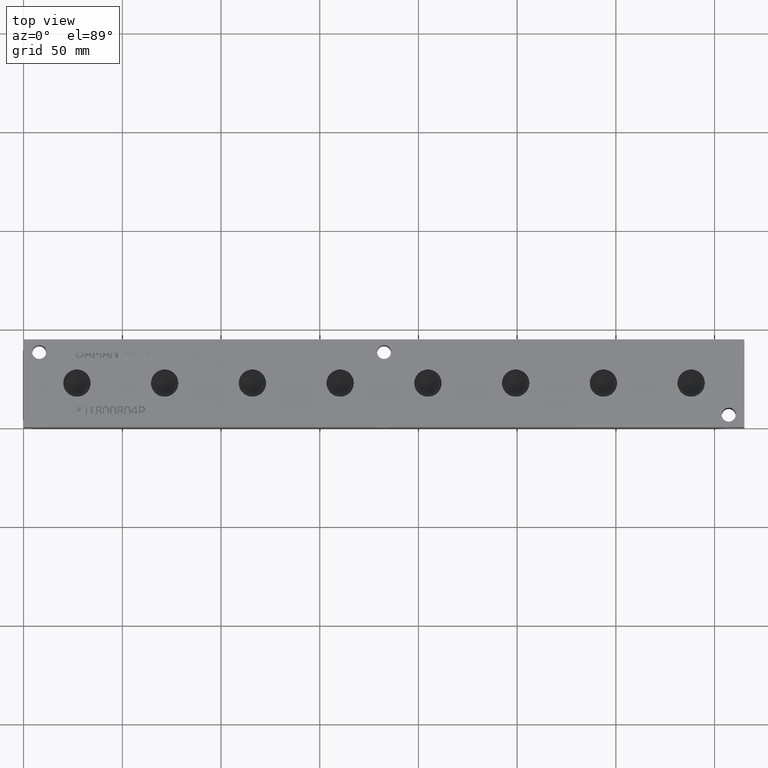
[diagram: clean part render]
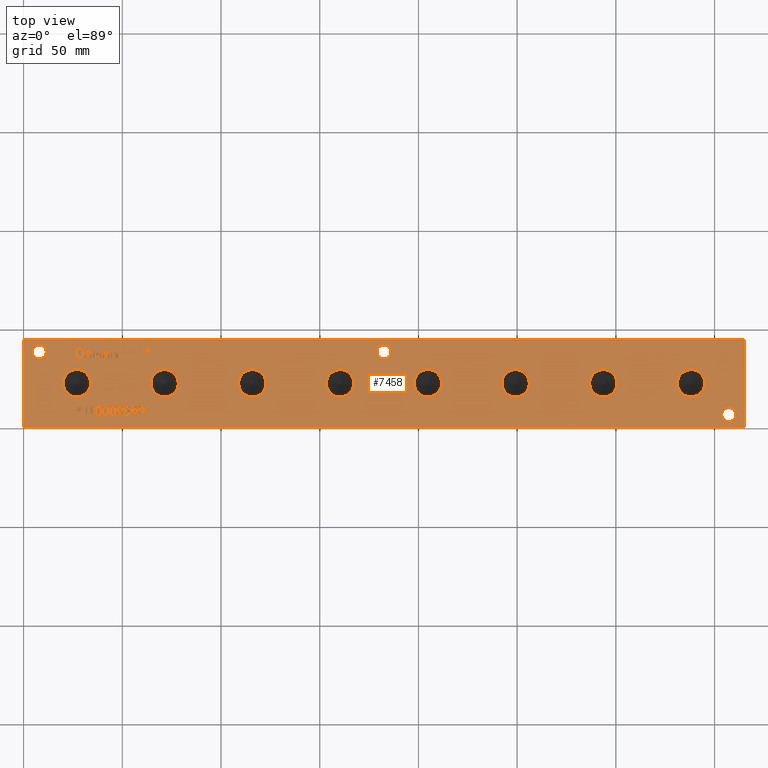
[diagram: same view with one face highlighted and labeled with its STEP entity id]
A machine part, top view. The second image highlights one B-rep face of the part: STEP entity #7458.
In plain terms, the highlighted planar face has unit normal (0, 0, 1).
Its self-contained STEP definition (entity closure, byte-faithful):
#86=CIRCLE('',#7778,3.5687);
#87=CIRCLE('',#7779,3.5687);
#88=CIRCLE('',#7780,3.5687);
#89=CIRCLE('',#7781,3.5687);
#90=CIRCLE('',#7782,3.5687);
#91=CIRCLE('',#7783,3.5687);
#92=CIRCLE('',#7784,6.9342);
#93=CIRCLE('',#7785,6.9342);
#94=CIRCLE('',#7786,6.9342);
#95=CIRCLE('',#7787,6.9342);
#96=CIRCLE('',#7788,6.9342);
#97=CIRCLE('',#7789,6.9342);
#98=CIRCLE('',#7790,6.9342);
#99=CIRCLE('',#7791,6.9342);
#100=CIRCLE('',#7792,6.9342);
#101=CIRCLE('',#7793,6.9342);
#102=CIRCLE('',#7794,6.9342);
#103=CIRCLE('',#7795,6.9342);
#104=CIRCLE('',#7796,6.9342);
#105=CIRCLE('',#7797,6.9342);
#106=CIRCLE('',#7798,6.9342);
#107=CIRCLE('',#7799,6.9342);
#225=FACE_BOUND('',#1090,.T.);
#226=FACE_BOUND('',#1091,.T.);
#227=FACE_BOUND('',#1092,.T.);
#228=FACE_BOUND('',#1093,.T.);
#229=FACE_BOUND('',#1094,.T.);
#230=FACE_BOUND('',#1095,.T.);
#231=FACE_BOUND('',#1096,.T.);
#232=FACE_BOUND('',#1097,.T.);
#233=FACE_BOUND('',#1098,.T.);
#234=FACE_BOUND('',#1099,.T.);
#235=FACE_BOUND('',#1100,.T.);
#236=FACE_BOUND('',#1101,.T.);
#237=FACE_BOUND('',#1102,.T.);
#238=FACE_BOUND('',#1103,.T.);
#239=FACE_BOUND('',#1104,.T.);
#240=FACE_BOUND('',#1105,.T.);
#241=FACE_BOUND('',#1106,.T.);
#242=FACE_BOUND('',#1107,.T.);
#243=FACE_BOUND('',#1108,.T.);
#244=FACE_BOUND('',#1109,.T.);
#245=FACE_BOUND('',#1110,.T.);
#246=FACE_BOUND('',#1111,.T.);
#247=FACE_BOUND('',#1112,.T.);
#248=FACE_BOUND('',#1113,.T.);
#249=FACE_BOUND('',#1114,.T.);
#250=FACE_BOUND('',#1115,.T.);
#251=FACE_BOUND('',#1116,.T.);
#252=FACE_BOUND('',#1117,.T.);
#253=FACE_BOUND('',#1118,.T.);
#254=FACE_BOUND('',#1119,.T.);
#362=PLANE('',#7777);
#687=FACE_OUTER_BOUND('',#1089,.T.);
#1089=EDGE_LOOP('',(#5540,#5541,#5542,#5543));
#1090=EDGE_LOOP('',(#5544,#5545,#5546,#5547,#5548,#5549,#5550,#5551,#5552,
#5553,#5554,#5555,#5556,#5557,#5558,#5559,#5560,#5561));
#1091=EDGE_LOOP('',(#5562,#5563,#5564,#5565,#5566,#5567,#5568,#5569,#5570,
#5571,#5572,#5573,#5574,#5575,#5576,#5577,#5578,#5579));
#1092=EDGE_LOOP('',(#5580,#5581,#5582,#5583,#5584,#5585,#5586,#5587,#5588,
#5589,#5590,#5591,#5592));
#1093=EDGE_LOOP('',(#5593,#5594,#5595,#5596,#5597,#5598,#5599,#5600));
#1094=EDGE_LOOP('',(#5601,#5602,#5603,#5604,#5605,#5606,#5607));
#1095=EDGE_LOOP('',(#5608,#5609,#5610,#5611,#5612,#5613,#5614,#5615));
#1096=EDGE_LOOP('',(#5616,#5617,#5618,#5619,#5620,#5621,#5622,#5623,#5624,
#5625));
#1097=EDGE_LOOP('',(#5626,#5627,#5628,#5629,#5630,#5631,#5632,#5633,#5634,
#5635,#5636,#5637,#5638,#5639,#5640,#5641,#5642,#5643));
#1098=EDGE_LOOP('',(#5644,#5645,#5646,#5647,#5648,#5649,#5650,#5651,#5652,
#5653,#5654,#5655,#5656,#5657,#5658,#5659,#5660,#5661));
#1099=EDGE_LOOP('',(#5662,#5663));
#1100=EDGE_LOOP('',(#5664,#5665));
#1101=EDGE_LOOP('',(#5666,#5667));
#1102=EDGE_LOOP('',(#5668,#5669));
#1103=EDGE_LOOP('',(#5670,#5671));
#1104=EDGE_LOOP('',(#5672,#5673));
#1105=EDGE_LOOP('',(#5674,#5675));
#1106=EDGE_LOOP('',(#5676,#5677));
#1107=EDGE_LOOP('',(#5678,#5679));
#1108=EDGE_LOOP('',(#5680,#5681));
#1109=EDGE_LOOP('',(#5682,#5683));
#1110=EDGE_LOOP('',(#5684,#5685,#5686,#5687,#5688,#5689,#5690,#5691,#5692,
#5693,#5694));
#1111=EDGE_LOOP('',(#5695,#5696,#5697,#5698));
#1112=EDGE_LOOP('',(#5699,#5700,#5701,#5702));
#1113=EDGE_LOOP('',(#5703,#5704,#5705,#5706,#5707,#5708,#5709,#5710,#5711,
#5712,#5713));
#1114=EDGE_LOOP('',(#5714,#5715,#5716,#5717,#5718,#5719,#5720,#5721,#5722,
#5723,#5724,#5725,#5726,#5727,#5728,#5729,#5730,#5731));
#1115=EDGE_LOOP('',(#5732,#5733,#5734,#5735,#5736,#5737,#5738,#5739,#5740,
#5741,#5742,#5743));
#1116=EDGE_LOOP('',(#5744,#5745,#5746,#5747,#5748,#5749,#5750,#5751,#5752,
#5753,#5754));
#1117=EDGE_LOOP('',(#5755,#5756,#5757,#5758));
#1118=EDGE_LOOP('',(#5759,#5760,#5761,#5762,#5763,#5764,#5765,#5766,#5767,
#5768,#5769));
#1119=EDGE_LOOP('',(#5770,#5771,#5772,#5773,#5774,#5775,#5776,#5777,#5778));
#1405=LINE('',#9883,#2125);
#1408=LINE('',#9889,#2128);
#1411=LINE('',#9895,#2131);
#1414=LINE('',#9901,#2134);
#1417=LINE('',#9907,#2137);
#1430=LINE('',#9968,#2150);
#1434=LINE('',#9976,#2154);
#1437=LINE('',#9982,#2157);
#1440=LINE('',#9988,#2160);
#1443=LINE('',#9994,#2163);
#1446=LINE('',#10000,#2166);
#1449=LINE('',#10006,#2169);
#1452=LINE('',#10012,#2172);
#1455=LINE('',#10018,#2175);
#1458=LINE('',#10024,#2178);
#1461=LINE('',#10029,#2181);
#1488=LINE('',#10494,#2208);
#1495=LINE('',#10576,#2215);
#1500=LINE('',#10638,#2220);
#1504=LINE('',#10646,#2224);
#1507=LINE('',#10652,#2227);
#1510=LINE('',#10658,#2230);
#1513=LINE('',#10664,#2233);
#1519=LINE('',#10727,#2239);
#1522=LINE('',#10733,#2242);
#1526=LINE('',#10776,#2246);
#1530=LINE('',#10784,#2250);
#1533=LINE('',#10790,#2253);
#1536=LINE('',#10796,#2256);
#1539=LINE('',#10802,#2259);
#1542=LINE('',#10808,#2262);
#1545=LINE('',#10814,#2265);
#1548=LINE('',#10820,#2268);
#1551=LINE('',#10826,#2271);
#1554=LINE('',#10832,#2274);
#1557=LINE('',#10838,#2277);
#1560=LINE('',#10844,#2280);
#1563=LINE('',#10850,#2283);
#1566=LINE('',#10856,#2286);
#1569=LINE('',#10862,#2289);
#1572=LINE('',#10868,#2292);
#1575=LINE('',#10874,#2295);
#1578=LINE('',#10879,#2298);
#1580=LINE('',#10885,#2300);
#1584=LINE('',#10893,#2304);
#1587=LINE('',#10899,#2307);
#1590=LINE('',#10905,#2310);
#1594=LINE('',#10930,#2314);
#1597=LINE('',#10936,#2317);
#1600=LINE('',#10942,#2320);
#1603=LINE('',#10948,#2323);
#1606=LINE('',#10954,#2326);
#1609=LINE('',#10959,#2329);
#1648=LINE('',#11653,#2368);
#1655=LINE('',#11735,#2375);
#1660=LINE('',#11797,#2380);
#1661=LINE('',#11799,#2381);
#1662=LINE('',#11801,#2382);
#1663=LINE('',#11802,#2383);
#1664=LINE('',#11805,#2384);
#1665=LINE('',#11807,#2385);
#1666=LINE('',#11809,#2386);
#1667=LINE('',#11811,#2387);
#1668=LINE('',#11813,#2388);
#1669=LINE('',#11815,#2389);
#1670=LINE('',#11817,#2390);
#1671=LINE('',#11819,#2391);
#1672=LINE('',#11821,#2392);
#1673=LINE('',#11823,#2393);
#1674=LINE('',#11825,#2394);
#1675=LINE('',#11827,#2395);
#1676=LINE('',#11829,#2396);
#1677=LINE('',#11831,#2397);
#1678=LINE('',#11833,#2398);
#1679=LINE('',#11835,#2399);
#1680=LINE('',#11837,#2400);
#1681=LINE('',#11838,#2401);
#1682=LINE('',#11841,#2402);
#1683=LINE('',#11843,#2403);
#1684=LINE('',#11845,#2404);
#1685=LINE('',#11847,#2405);
#1686=LINE('',#11849,#2406);
#1687=LINE('',#11851,#2407);
#1688=LINE('',#11853,#2408);
#1689=LINE('',#11855,#2409);
#1690=LINE('',#11857,#2410);
#1691=LINE('',#11859,#2411);
#1692=LINE('',#11861,#2412);
#1693=LINE('',#11863,#2413);
#1694=LINE('',#11865,#2414);
#1695=LINE('',#11867,#2415);
#1696=LINE('',#11869,#2416);
#1697=LINE('',#11871,#2417);
#1698=LINE('',#11873,#2418);
#1699=LINE('',#11874,#2419);
#1700=LINE('',#11877,#2420);
#1701=LINE('',#11879,#2421);
#1702=LINE('',#11881,#2422);
#1703=LINE('',#11883,#2423);
#1704=LINE('',#11885,#2424);
#1705=LINE('',#11887,#2425);
#1706=LINE('',#11889,#2426);
#1707=LINE('',#11891,#2427);
#1708=LINE('',#11893,#2428);
#1709=LINE('',#11895,#2429);
#1710=LINE('',#11897,#2430);
#1711=LINE('',#11899,#2431);
#1712=LINE('',#11900,#2432);
#1713=LINE('',#11903,#2433);
#1714=LINE('',#11905,#2434);
#1715=LINE('',#11907,#2435);
#1716=LINE('',#11909,#2436);
#1717=LINE('',#11911,#2437);
#1718=LINE('',#11913,#2438);
#1719=LINE('',#11915,#2439);
#1720=LINE('',#11916,#2440);
#1721=LINE('',#11934,#2441);
#1722=LINE('',#11936,#2442);
#1723=LINE('',#11938,#2443);
#1724=LINE('',#11945,#2444);
#1725=LINE('',#11947,#2445);
#1726=LINE('',#11949,#2446);
#1727=LINE('',#11951,#2447);
#1728=LINE('',#11953,#2448);
#1729=LINE('',#11955,#2449);
#1730=LINE('',#11957,#2450);
#1731=LINE('',#11958,#2451);
#1732=LINE('',#11961,#2452);
#1733=LINE('',#11963,#2453);
#1734=LINE('',#11965,#2454);
#1735=LINE('',#11967,#2455);
#1736=LINE('',#11969,#2456);
#1737=LINE('',#11971,#2457);
#1738=LINE('',#11973,#2458);
#1739=LINE('',#11975,#2459);
#1740=LINE('',#11977,#2460);
#1741=LINE('',#11978,#2461);
#1742=LINE('',#11981,#2462);
#1743=LINE('',#11983,#2463);
#1744=LINE('',#11985,#2464);
#1745=LINE('',#11987,#2465);
#1746=LINE('',#11989,#2466);
#1747=LINE('',#11991,#2467);
#1748=LINE('',#11993,#2468);
#1749=LINE('',#11995,#2469);
#1750=LINE('',#11997,#2470);
#1751=LINE('',#11999,#2471);
#1752=LINE('',#12001,#2472);
#1753=LINE('',#12003,#2473);
#1754=LINE('',#12005,#2474);
#1755=LINE('',#12007,#2475);
#1756=LINE('',#12009,#2476);
#1757=LINE('',#12011,#2477);
#1758=LINE('',#12013,#2478);
#1759=LINE('',#12014,#2479);
#1760=LINE('',#12017,#2480);
#1761=LINE('',#12019,#2481);
#1762=LINE('',#12021,#2482);
#1763=LINE('',#12023,#2483);
#1764=LINE('',#12025,#2484);
#1765=LINE('',#12027,#2485);
#1766=LINE('',#12029,#2486);
#1767=LINE('',#12031,#2487);
#1768=LINE('',#12033,#2488);
#1769=LINE('',#12035,#2489);
#1770=LINE('',#12037,#2490);
#1771=LINE('',#12039,#2491);
#1772=LINE('',#12041,#2492);
#1773=LINE('',#12043,#2493);
#1774=LINE('',#12045,#2494);
#1775=LINE('',#12047,#2495);
#1776=LINE('',#12049,#2496);
#1777=LINE('',#12050,#2497);
#2125=VECTOR('',#8171,10.);
#2128=VECTOR('',#8176,10.);
#2131=VECTOR('',#8181,10.);
#2134=VECTOR('',#8186,10.);
#2137=VECTOR('',#8191,10.);
#2150=VECTOR('',#8214,10.);
#2154=VECTOR('',#8220,10.);
#2157=VECTOR('',#8225,10.);
#2160=VECTOR('',#8230,10.);
#2163=VECTOR('',#8235,10.);
#2166=VECTOR('',#8240,10.);
#2169=VECTOR('',#8245,10.);
#2172=VECTOR('',#8250,10.);
#2175=VECTOR('',#8255,10.);
#2178=VECTOR('',#8260,10.);
#2181=VECTOR('',#8265,10.);
#2208=VECTOR('',#8298,10.);
#2215=VECTOR('',#8307,10.);
#2220=VECTOR('',#8316,10.);
#2224=VECTOR('',#8322,10.);
#2227=VECTOR('',#8327,10.);
#2230=VECTOR('',#8332,10.);
#2233=VECTOR('',#8337,10.);
#2239=VECTOR('',#8345,10.);
#2242=VECTOR('',#8350,10.);
#2246=VECTOR('',#8358,10.);
#2250=VECTOR('',#8364,10.);
#2253=VECTOR('',#8369,10.);
#2256=VECTOR('',#8374,10.);
#2259=VECTOR('',#8379,10.);
#2262=VECTOR('',#8384,10.);
#2265=VECTOR('',#8389,10.);
#2268=VECTOR('',#8394,10.);
#2271=VECTOR('',#8399,10.);
#2274=VECTOR('',#8404,10.);
#2277=VECTOR('',#8409,10.);
#2280=VECTOR('',#8414,10.);
#2283=VECTOR('',#8419,10.);
#2286=VECTOR('',#8424,10.);
#2289=VECTOR('',#8429,10.);
#2292=VECTOR('',#8434,10.);
#2295=VECTOR('',#8439,10.);
#2298=VECTOR('',#8444,10.);
#2300=VECTOR('',#8450,10.);
#2304=VECTOR('',#8456,10.);
#2307=VECTOR('',#8461,10.);
#2310=VECTOR('',#8466,10.);
#2314=VECTOR('',#8472,10.);
#2317=VECTOR('',#8477,10.);
#2320=VECTOR('',#8482,10.);
#2323=VECTOR('',#8487,10.);
#2326=VECTOR('',#8492,10.);
#2329=VECTOR('',#8497,10.);
#2368=VECTOR('',#8544,10.);
#2375=VECTOR('',#8553,10.);
#2380=VECTOR('',#8562,10.);
#2381=VECTOR('',#8563,10.);
#2382=VECTOR('',#8564,10.);
#2383=VECTOR('',#8565,10.);
#2384=VECTOR('',#8566,10.);
#2385=VECTOR('',#8567,10.);
#2386=VECTOR('',#8568,10.);
#2387=VECTOR('',#8569,10.);
#2388=VECTOR('',#8570,10.);
#2389=VECTOR('',#8571,10.);
#2390=VECTOR('',#8572,10.);
#2391=VECTOR('',#8573,10.);
#2392=VECTOR('',#8574,10.);
#2393=VECTOR('',#8575,10.);
#2394=VECTOR('',#8576,10.);
#2395=VECTOR('',#8577,10.);
#2396=VECTOR('',#8578,10.);
#2397=VECTOR('',#8579,10.);
#2398=VECTOR('',#8580,10.);
#2399=VECTOR('',#8581,10.);
#2400=VECTOR('',#8582,10.);
#2401=VECTOR('',#8583,10.);
#2402=VECTOR('',#8584,10.);
#2403=VECTOR('',#8585,10.);
#2404=VECTOR('',#8586,10.);
#2405=VECTOR('',#8587,10.);
#2406=VECTOR('',#8588,10.);
#2407=VECTOR('',#8589,10.);
#2408=VECTOR('',#8590,10.);
#2409=VECTOR('',#8591,10.);
#2410=VECTOR('',#8592,10.);
#2411=VECTOR('',#8593,10.);
#2412=VECTOR('',#8594,10.);
#2413=VECTOR('',#8595,10.);
#2414=VECTOR('',#8596,10.);
#2415=VECTOR('',#8597,10.);
#2416=VECTOR('',#8598,10.);
#2417=VECTOR('',#8599,10.);
#2418=VECTOR('',#8600,10.);
#2419=VECTOR('',#8601,10.);
#2420=VECTOR('',#8602,10.);
#2421=VECTOR('',#8603,10.);
#2422=VECTOR('',#8604,10.);
#2423=VECTOR('',#8605,10.);
#2424=VECTOR('',#8606,10.);
#2425=VECTOR('',#8607,10.);
#2426=VECTOR('',#8608,10.);
#2427=VECTOR('',#8609,10.);
#2428=VECTOR('',#8610,10.);
#2429=VECTOR('',#8611,10.);
#2430=VECTOR('',#8612,10.);
#2431=VECTOR('',#8613,10.);
#2432=VECTOR('',#8614,10.);
#2433=VECTOR('',#8615,10.);
#2434=VECTOR('',#8616,10.);
#2435=VECTOR('',#8617,10.);
#2436=VECTOR('',#8618,10.);
#2437=VECTOR('',#8619,10.);
#2438=VECTOR('',#8620,10.);
#2439=VECTOR('',#8621,10.);
#2440=VECTOR('',#8622,10.);
#2441=VECTOR('',#8623,10.);
#2442=VECTOR('',#8624,10.);
#2443=VECTOR('',#8625,10.);
#2444=VECTOR('',#8626,10.);
#2445=VECTOR('',#8627,10.);
#2446=VECTOR('',#8628,10.);
#2447=VECTOR('',#8629,10.);
#2448=VECTOR('',#8630,10.);
#2449=VECTOR('',#8631,10.);
#2450=VECTOR('',#8632,10.);
#2451=VECTOR('',#8633,10.);
#2452=VECTOR('',#8634,10.);
#2453=VECTOR('',#8635,10.);
#2454=VECTOR('',#8636,10.);
#2455=VECTOR('',#8637,10.);
#2456=VECTOR('',#8638,10.);
#2457=VECTOR('',#8639,10.);
#2458=VECTOR('',#8640,10.);
#2459=VECTOR('',#8641,10.);
#2460=VECTOR('',#8642,10.);
#2461=VECTOR('',#8643,10.);
#2462=VECTOR('',#8644,10.);
#2463=VECTOR('',#8645,10.);
#2464=VECTOR('',#8646,10.);
#2465=VECTOR('',#8647,10.);
#2466=VECTOR('',#8648,10.);
#2467=VECTOR('',#8649,10.);
#2468=VECTOR('',#8650,10.);
#2469=VECTOR('',#8651,10.);
#2470=VECTOR('',#8652,10.);
#2471=VECTOR('',#8653,10.);
#2472=VECTOR('',#8654,10.);
#2473=VECTOR('',#8655,10.);
#2474=VECTOR('',#8656,10.);
#2475=VECTOR('',#8657,10.);
#2476=VECTOR('',#8658,10.);
#2477=VECTOR('',#8659,10.);
#2478=VECTOR('',#8660,10.);
#2479=VECTOR('',#8661,10.);
#2480=VECTOR('',#8662,10.);
#2481=VECTOR('',#8663,10.);
#2482=VECTOR('',#8664,10.);
#2483=VECTOR('',#8665,10.);
#2484=VECTOR('',#8666,10.);
#2485=VECTOR('',#8667,10.);
#2486=VECTOR('',#8668,10.);
#2487=VECTOR('',#8669,10.);
#2488=VECTOR('',#8670,10.);
#2489=VECTOR('',#8671,10.);
#2490=VECTOR('',#8672,10.);
#2491=VECTOR('',#8673,10.);
#2492=VECTOR('',#8674,10.);
#2493=VECTOR('',#8675,10.);
#2494=VECTOR('',#8676,10.);
#2495=VECTOR('',#8677,10.);
#2496=VECTOR('',#8678,10.);
#2497=VECTOR('',#8679,10.);
#2837=B_SPLINE_CURVE_WITH_KNOTS('',2,(#9850,#9851,#9852,#9853),
 .UNSPECIFIED.,.F.,.F.,(3,1,3),(0.,1.,2.),.UNSPECIFIED.);
#2839=B_SPLINE_CURVE_WITH_KNOTS('',2,(#9871,#9872,#9873,#9874),
 .UNSPECIFIED.,.F.,.F.,(3,1,3),(0.,1.,2.),.UNSPECIFIED.);
#2841=B_SPLINE_CURVE_WITH_KNOTS('',2,(#9920,#9921,#9922,#9923),
 .UNSPECIFIED.,.F.,.F.,(3,1,3),(0.,1.,2.),.UNSPECIFIED.);
#2843=B_SPLINE_CURVE_WITH_KNOTS('',2,(#9938,#9939,#9940,#9941),
 .UNSPECIFIED.,.F.,.F.,(3,1,3),(0.,1.,2.),.UNSPECIFIED.);
#2861=B_SPLINE_CURVE_WITH_KNOTS('',2,(#10194,#10195,#10196,#10197),
 .UNSPECIFIED.,.F.,.F.,(3,1,3),(0.,1.,2.),.UNSPECIFIED.);
#2863=B_SPLINE_CURVE_WITH_KNOTS('',2,(#10215,#10216,#10217,#10218),
 .UNSPECIFIED.,.F.,.F.,(3,1,3),(0.,1.,2.),.UNSPECIFIED.);
#2865=B_SPLINE_CURVE_WITH_KNOTS('',2,(#10234,#10235,#10236,#10237),
 .UNSPECIFIED.,.F.,.F.,(3,1,3),(0.,1.,2.),.UNSPECIFIED.);
#2867=B_SPLINE_CURVE_WITH_KNOTS('',2,(#10252,#10253,#10254,#10255),
 .UNSPECIFIED.,.F.,.F.,(3,1,3),(0.,1.,2.),.UNSPECIFIED.);
#2889=B_SPLINE_CURVE_WITH_KNOTS('',2,(#10461,#10462,#10463,#10464),
 .UNSPECIFIED.,.F.,.F.,(3,1,3),(0.,1.,2.),.UNSPECIFIED.);
#2891=B_SPLINE_CURVE_WITH_KNOTS('',2,(#10482,#10483,#10484,#10485),
 .UNSPECIFIED.,.F.,.F.,(3,1,3),(0.,1.,2.),.UNSPECIFIED.);
#2893=B_SPLINE_CURVE_WITH_KNOTS('',2,(#10507,#10508,#10509,#10510),
 .UNSPECIFIED.,.F.,.F.,(3,1,3),(0.,1.,2.),.UNSPECIFIED.);
#2895=B_SPLINE_CURVE_WITH_KNOTS('',2,(#10526,#10527,#10528,#10529),
 .UNSPECIFIED.,.F.,.F.,(3,1,3),(0.,1.,2.),.UNSPECIFIED.);
#2897=B_SPLINE_CURVE_WITH_KNOTS('',2,(#10545,#10546,#10547,#10548),
 .UNSPECIFIED.,.F.,.F.,(3,1,3),(0.,1.,2.),.UNSPECIFIED.);
#2899=B_SPLINE_CURVE_WITH_KNOTS('',2,(#10564,#10565,#10566,#10567),
 .UNSPECIFIED.,.F.,.F.,(3,1,3),(0.,1.,2.),.UNSPECIFIED.);
#2901=B_SPLINE_CURVE_WITH_KNOTS('',2,(#10589,#10590,#10591,#10592),
 .UNSPECIFIED.,.F.,.F.,(3,1,3),(0.,1.,2.),.UNSPECIFIED.);
#2903=B_SPLINE_CURVE_WITH_KNOTS('',2,(#10608,#10609,#10610,#10611),
 .UNSPECIFIED.,.F.,.F.,(3,1,3),(0.,1.,2.),.UNSPECIFIED.);
#2905=B_SPLINE_CURVE_WITH_KNOTS('',2,(#10626,#10627,#10628,#10629),
 .UNSPECIFIED.,.F.,.F.,(3,1,3),(0.,1.,2.),.UNSPECIFIED.);
#2907=B_SPLINE_CURVE_WITH_KNOTS('',2,(#10677,#10678,#10679,#10680),
 .UNSPECIFIED.,.F.,.F.,(3,1,3),(0.,1.,2.),.UNSPECIFIED.);
#2909=B_SPLINE_CURVE_WITH_KNOTS('',2,(#10696,#10697,#10698,#10699),
 .UNSPECIFIED.,.F.,.F.,(3,1,3),(0.,1.,2.),.UNSPECIFIED.);
#2911=B_SPLINE_CURVE_WITH_KNOTS('',2,(#10715,#10716,#10717,#10718),
 .UNSPECIFIED.,.F.,.F.,(3,1,3),(0.,1.,2.),.UNSPECIFIED.);
#2913=B_SPLINE_CURVE_WITH_KNOTS('',2,(#10746,#10747,#10748,#10749),
 .UNSPECIFIED.,.F.,.F.,(3,1,3),(0.,1.,2.),.UNSPECIFIED.);
#2915=B_SPLINE_CURVE_WITH_KNOTS('',2,(#10764,#10765,#10766,#10767),
 .UNSPECIFIED.,.F.,.F.,(3,1,3),(0.,1.,2.),.UNSPECIFIED.);
#2917=B_SPLINE_CURVE_WITH_KNOTS('',2,(#10918,#10919,#10920,#10921),
 .UNSPECIFIED.,.F.,.F.,(3,1,3),(0.,1.,2.),.UNSPECIFIED.);
#2935=B_SPLINE_CURVE_WITH_KNOTS('',2,(#11124,#11125,#11126,#11127),
 .UNSPECIFIED.,.F.,.F.,(3,1,3),(0.,1.,2.),.UNSPECIFIED.);
#2937=B_SPLINE_CURVE_WITH_KNOTS('',2,(#11145,#11146,#11147,#11148),
 .UNSPECIFIED.,.F.,.F.,(3,1,3),(0.,1.,2.),.UNSPECIFIED.);
#2939=B_SPLINE_CURVE_WITH_KNOTS('',2,(#11164,#11165,#11166,#11167),
 .UNSPECIFIED.,.F.,.F.,(3,1,3),(0.,1.,2.),.UNSPECIFIED.);
#2941=B_SPLINE_CURVE_WITH_KNOTS('',2,(#11182,#11183,#11184,#11185),
 .UNSPECIFIED.,.F.,.F.,(3,1,3),(0.,1.,2.),.UNSPECIFIED.);
#2959=B_SPLINE_CURVE_WITH_KNOTS('',2,(#11353,#11354,#11355,#11356),
 .UNSPECIFIED.,.F.,.F.,(3,1,3),(0.,1.,2.),.UNSPECIFIED.);
#2961=B_SPLINE_CURVE_WITH_KNOTS('',2,(#11374,#11375,#11376,#11377),
 .UNSPECIFIED.,.F.,.F.,(3,1,3),(0.,1.,2.),.UNSPECIFIED.);
#2963=B_SPLINE_CURVE_WITH_KNOTS('',2,(#11393,#11394,#11395,#11396),
 .UNSPECIFIED.,.F.,.F.,(3,1,3),(0.,1.,2.),.UNSPECIFIED.);
#2965=B_SPLINE_CURVE_WITH_KNOTS('',2,(#11411,#11412,#11413,#11414),
 .UNSPECIFIED.,.F.,.F.,(3,1,3),(0.,1.,2.),.UNSPECIFIED.);
#2987=B_SPLINE_CURVE_WITH_KNOTS('',2,(#11620,#11621,#11622,#11623),
 .UNSPECIFIED.,.F.,.F.,(3,1,3),(0.,1.,2.),.UNSPECIFIED.);
#2989=B_SPLINE_CURVE_WITH_KNOTS('',2,(#11641,#11642,#11643,#11644),
 .UNSPECIFIED.,.F.,.F.,(3,1,3),(0.,1.,2.),.UNSPECIFIED.);
#2991=B_SPLINE_CURVE_WITH_KNOTS('',2,(#11666,#11667,#11668,#11669),
 .UNSPECIFIED.,.F.,.F.,(3,1,3),(0.,1.,2.),.UNSPECIFIED.);
#2993=B_SPLINE_CURVE_WITH_KNOTS('',2,(#11685,#11686,#11687,#11688),
 .UNSPECIFIED.,.F.,.F.,(3,1,3),(0.,1.,2.),.UNSPECIFIED.);
#2995=B_SPLINE_CURVE_WITH_KNOTS('',2,(#11704,#11705,#11706,#11707),
 .UNSPECIFIED.,.F.,.F.,(3,1,3),(0.,1.,2.),.UNSPECIFIED.);
#2997=B_SPLINE_CURVE_WITH_KNOTS('',2,(#11723,#11724,#11725,#11726),
 .UNSPECIFIED.,.F.,.F.,(3,1,3),(0.,1.,2.),.UNSPECIFIED.);
#2999=B_SPLINE_CURVE_WITH_KNOTS('',2,(#11748,#11749,#11750,#11751),
 .UNSPECIFIED.,.F.,.F.,(3,1,3),(0.,1.,2.),.UNSPECIFIED.);
#3001=B_SPLINE_CURVE_WITH_KNOTS('',2,(#11767,#11768,#11769,#11770),
 .UNSPECIFIED.,.F.,.F.,(3,1,3),(0.,1.,2.),.UNSPECIFIED.);
#3003=B_SPLINE_CURVE_WITH_KNOTS('',2,(#11785,#11786,#11787,#11788),
 .UNSPECIFIED.,.F.,.F.,(3,1,3),(0.,1.,2.),.UNSPECIFIED.);
#3005=B_SPLINE_CURVE_WITH_KNOTS('',2,(#11919,#11920,#11921,#11922),
 .UNSPECIFIED.,.F.,.F.,(3,1,3),(0.,1.,2.),.UNSPECIFIED.);
#3006=B_SPLINE_CURVE_WITH_KNOTS('',2,(#11924,#11925,#11926,#11927),
 .UNSPECIFIED.,.F.,.F.,(3,1,3),(0.,1.,2.),.UNSPECIFIED.);
#3007=B_SPLINE_CURVE_WITH_KNOTS('',2,(#11929,#11930,#11931,#11932),
 .UNSPECIFIED.,.F.,.F.,(3,1,3),(0.,1.,2.),.UNSPECIFIED.);
#3008=B_SPLINE_CURVE_WITH_KNOTS('',2,(#11939,#11940,#11941,#11942),
 .UNSPECIFIED.,.F.,.F.,(3,1,3),(0.,1.,2.),.UNSPECIFIED.);
#3035=VERTEX_POINT('',#9848);
#3036=VERTEX_POINT('',#9849);
#3039=VERTEX_POINT('',#9870);
#3041=VERTEX_POINT('',#9882);
#3043=VERTEX_POINT('',#9888);
#3045=VERTEX_POINT('',#9894);
#3047=VERTEX_POINT('',#9900);
#3049=VERTEX_POINT('',#9906);
#3051=VERTEX_POINT('',#9919);
#3059=VERTEX_POINT('',#9966);
#3060=VERTEX_POINT('',#9967);
#3063=VERTEX_POINT('',#9975);
#3065=VERTEX_POINT('',#9981);
#3067=VERTEX_POINT('',#9987);
#3069=VERTEX_POINT('',#9993);
#3071=VERTEX_POINT('',#9999);
#3073=VERTEX_POINT('',#10005);
#3075=VERTEX_POINT('',#10011);
#3077=VERTEX_POINT('',#10017);
#3079=VERTEX_POINT('',#10023);
#3097=VERTEX_POINT('',#10192);
#3098=VERTEX_POINT('',#10193);
#3101=VERTEX_POINT('',#10214);
#3103=VERTEX_POINT('',#10233);
#3125=VERTEX_POINT('',#10459);
#3126=VERTEX_POINT('',#10460);
#3129=VERTEX_POINT('',#10481);
#3131=VERTEX_POINT('',#10493);
#3133=VERTEX_POINT('',#10506);
#3135=VERTEX_POINT('',#10525);
#3137=VERTEX_POINT('',#10544);
#3139=VERTEX_POINT('',#10563);
#3141=VERTEX_POINT('',#10575);
#3143=VERTEX_POINT('',#10588);
#3145=VERTEX_POINT('',#10607);
#3147=VERTEX_POINT('',#10636);
#3148=VERTEX_POINT('',#10637);
#3151=VERTEX_POINT('',#10645);
#3153=VERTEX_POINT('',#10651);
#3155=VERTEX_POINT('',#10657);
#3157=VERTEX_POINT('',#10663);
#3159=VERTEX_POINT('',#10676);
#3161=VERTEX_POINT('',#10695);
#3163=VERTEX_POINT('',#10714);
#3165=VERTEX_POINT('',#10726);
#3167=VERTEX_POINT('',#10732);
#3169=VERTEX_POINT('',#10745);
#3171=VERTEX_POINT('',#10774);
#3172=VERTEX_POINT('',#10775);
#3175=VERTEX_POINT('',#10783);
#3177=VERTEX_POINT('',#10789);
#3179=VERTEX_POINT('',#10795);
#3181=VERTEX_POINT('',#10801);
#3183=VERTEX_POINT('',#10807);
#3185=VERTEX_POINT('',#10813);
#3187=VERTEX_POINT('',#10819);
#3189=VERTEX_POINT('',#10825);
#3191=VERTEX_POINT('',#10831);
#3193=VERTEX_POINT('',#10837);
#3195=VERTEX_POINT('',#10843);
#3197=VERTEX_POINT('',#10849);
#3199=VERTEX_POINT('',#10855);
#3201=VERTEX_POINT('',#10861);
#3203=VERTEX_POINT('',#10867);
#3205=VERTEX_POINT('',#10873);
#3207=VERTEX_POINT('',#10883);
#3208=VERTEX_POINT('',#10884);
#3211=VERTEX_POINT('',#10892);
#3213=VERTEX_POINT('',#10898);
#3215=VERTEX_POINT('',#10904);
#3217=VERTEX_POINT('',#10917);
#3219=VERTEX_POINT('',#10929);
#3221=VERTEX_POINT('',#10935);
#3223=VERTEX_POINT('',#10941);
#3225=VERTEX_POINT('',#10947);
#3227=VERTEX_POINT('',#10953);
#3245=VERTEX_POINT('',#11122);
#3246=VERTEX_POINT('',#11123);
#3249=VERTEX_POINT('',#11144);
#3251=VERTEX_POINT('',#11163);
#3269=VERTEX_POINT('',#11351);
#3270=VERTEX_POINT('',#11352);
#3273=VERTEX_POINT('',#11373);
#3275=VERTEX_POINT('',#11392);
#3297=VERTEX_POINT('',#11618);
#3298=VERTEX_POINT('',#11619);
#3301=VERTEX_POINT('',#11640);
#3303=VERTEX_POINT('',#11652);
#3305=VERTEX_POINT('',#11665);
#3307=VERTEX_POINT('',#11684);
#3309=VERTEX_POINT('',#11703);
#3311=VERTEX_POINT('',#11722);
#3313=VERTEX_POINT('',#11734);
#3315=VERTEX_POINT('',#11747);
#3317=VERTEX_POINT('',#11766);
#3319=VERTEX_POINT('',#11795);
#3320=VERTEX_POINT('',#11796);
#3321=VERTEX_POINT('',#11798);
#3322=VERTEX_POINT('',#11800);
#3323=VERTEX_POINT('',#11803);
#3324=VERTEX_POINT('',#11804);
#3325=VERTEX_POINT('',#11806);
#3326=VERTEX_POINT('',#11808);
#3327=VERTEX_POINT('',#11810);
#3328=VERTEX_POINT('',#11812);
#3329=VERTEX_POINT('',#11814);
#3330=VERTEX_POINT('',#11816);
#3331=VERTEX_POINT('',#11818);
#3332=VERTEX_POINT('',#11820);
#3333=VERTEX_POINT('',#11822);
#3334=VERTEX_POINT('',#11824);
#3335=VERTEX_POINT('',#11826);
#3336=VERTEX_POINT('',#11828);
#3337=VERTEX_POINT('',#11830);
#3338=VERTEX_POINT('',#11832);
#3339=VERTEX_POINT('',#11834);
#3340=VERTEX_POINT('',#11836);
#3341=VERTEX_POINT('',#11839);
#3342=VERTEX_POINT('',#11840);
#3343=VERTEX_POINT('',#11842);
#3344=VERTEX_POINT('',#11844);
#3345=VERTEX_POINT('',#11846);
#3346=VERTEX_POINT('',#11848);
#3347=VERTEX_POINT('',#11850);
#3348=VERTEX_POINT('',#11852);
#3349=VERTEX_POINT('',#11854);
#3350=VERTEX_POINT('',#11856);
#3351=VERTEX_POINT('',#11858);
#3352=VERTEX_POINT('',#11860);
#3353=VERTEX_POINT('',#11862);
#3354=VERTEX_POINT('',#11864);
#3355=VERTEX_POINT('',#11866);
#3356=VERTEX_POINT('',#11868);
#3357=VERTEX_POINT('',#11870);
#3358=VERTEX_POINT('',#11872);
#3359=VERTEX_POINT('',#11875);
#3360=VERTEX_POINT('',#11876);
#3361=VERTEX_POINT('',#11878);
#3362=VERTEX_POINT('',#11880);
#3363=VERTEX_POINT('',#11882);
#3364=VERTEX_POINT('',#11884);
#3365=VERTEX_POINT('',#11886);
#3366=VERTEX_POINT('',#11888);
#3367=VERTEX_POINT('',#11890);
#3368=VERTEX_POINT('',#11892);
#3369=VERTEX_POINT('',#11894);
#3370=VERTEX_POINT('',#11896);
#3371=VERTEX_POINT('',#11898);
#3372=VERTEX_POINT('',#11901);
#3373=VERTEX_POINT('',#11902);
#3374=VERTEX_POINT('',#11904);
#3375=VERTEX_POINT('',#11906);
#3376=VERTEX_POINT('',#11908);
#3377=VERTEX_POINT('',#11910);
#3378=VERTEX_POINT('',#11912);
#3379=VERTEX_POINT('',#11914);
#3380=VERTEX_POINT('',#11917);
#3381=VERTEX_POINT('',#11918);
#3382=VERTEX_POINT('',#11923);
#3383=VERTEX_POINT('',#11928);
#3384=VERTEX_POINT('',#11933);
#3385=VERTEX_POINT('',#11935);
#3386=VERTEX_POINT('',#11937);
#3387=VERTEX_POINT('',#11943);
#3388=VERTEX_POINT('',#11944);
#3389=VERTEX_POINT('',#11946);
#3390=VERTEX_POINT('',#11948);
#3391=VERTEX_POINT('',#11950);
#3392=VERTEX_POINT('',#11952);
#3393=VERTEX_POINT('',#11954);
#3394=VERTEX_POINT('',#11956);
#3395=VERTEX_POINT('',#11959);
#3396=VERTEX_POINT('',#11960);
#3397=VERTEX_POINT('',#11962);
#3398=VERTEX_POINT('',#11964);
#3399=VERTEX_POINT('',#11966);
#3400=VERTEX_POINT('',#11968);
#3401=VERTEX_POINT('',#11970);
#3402=VERTEX_POINT('',#11972);
#3403=VERTEX_POINT('',#11974);
#3404=VERTEX_POINT('',#11976);
#3405=VERTEX_POINT('',#11979);
#3406=VERTEX_POINT('',#11980);
#3407=VERTEX_POINT('',#11982);
#3408=VERTEX_POINT('',#11984);
#3409=VERTEX_POINT('',#11986);
#3410=VERTEX_POINT('',#11988);
#3411=VERTEX_POINT('',#11990);
#3412=VERTEX_POINT('',#11992);
#3413=VERTEX_POINT('',#11994);
#3414=VERTEX_POINT('',#11996);
#3415=VERTEX_POINT('',#11998);
#3416=VERTEX_POINT('',#12000);
#3417=VERTEX_POINT('',#12002);
#3418=VERTEX_POINT('',#12004);
#3419=VERTEX_POINT('',#12006);
#3420=VERTEX_POINT('',#12008);
#3421=VERTEX_POINT('',#12010);
#3422=VERTEX_POINT('',#12012);
#3423=VERTEX_POINT('',#12015);
#3424=VERTEX_POINT('',#12016);
#3425=VERTEX_POINT('',#12018);
#3426=VERTEX_POINT('',#12020);
#3427=VERTEX_POINT('',#12022);
#3428=VERTEX_POINT('',#12024);
#3429=VERTEX_POINT('',#12026);
#3430=VERTEX_POINT('',#12028);
#3431=VERTEX_POINT('',#12030);
#3432=VERTEX_POINT('',#12032);
#3433=VERTEX_POINT('',#12034);
#3434=VERTEX_POINT('',#12036);
#3435=VERTEX_POINT('',#12038);
#3436=VERTEX_POINT('',#12040);
#3437=VERTEX_POINT('',#12042);
#3438=VERTEX_POINT('',#12044);
#3439=VERTEX_POINT('',#12046);
#3440=VERTEX_POINT('',#12048);
#3441=VERTEX_POINT('',#12051);
#3442=VERTEX_POINT('',#12052);
#3443=VERTEX_POINT('',#12055);
#3444=VERTEX_POINT('',#12056);
#3445=VERTEX_POINT('',#12059);
#3446=VERTEX_POINT('',#12060);
#3447=VERTEX_POINT('',#12063);
#3448=VERTEX_POINT('',#12064);
#3449=VERTEX_POINT('',#12067);
#3450=VERTEX_POINT('',#12068);
#3451=VERTEX_POINT('',#12071);
#3452=VERTEX_POINT('',#12072);
#3453=VERTEX_POINT('',#12075);
#3454=VERTEX_POINT('',#12076);
#3455=VERTEX_POINT('',#12079);
#3456=VERTEX_POINT('',#12080);
#3457=VERTEX_POINT('',#12083);
#3458=VERTEX_POINT('',#12084);
#3459=VERTEX_POINT('',#12087);
#3460=VERTEX_POINT('',#12088);
#3461=VERTEX_POINT('',#12091);
#3462=VERTEX_POINT('',#12092);
#3762=EDGE_CURVE('',#3035,#3036,#2837,.T.);
#3766=EDGE_CURVE('',#3039,#3035,#2839,.T.);
#3769=EDGE_CURVE('',#3041,#3039,#1405,.T.);
#3772=EDGE_CURVE('',#3043,#3041,#1408,.T.);
#3775=EDGE_CURVE('',#3045,#3043,#1411,.T.);
#3778=EDGE_CURVE('',#3047,#3045,#1414,.T.);
#3781=EDGE_CURVE('',#3049,#3047,#1417,.T.);
#3784=EDGE_CURVE('',#3051,#3049,#2841,.T.);
#3787=EDGE_CURVE('',#3036,#3051,#2843,.T.);
#3798=EDGE_CURVE('',#3059,#3060,#1430,.T.);
#3802=EDGE_CURVE('',#3063,#3059,#1434,.T.);
#3805=EDGE_CURVE('',#3065,#3063,#1437,.T.);
#3808=EDGE_CURVE('',#3067,#3065,#1440,.T.);
#3811=EDGE_CURVE('',#3069,#3067,#1443,.T.);
#3814=EDGE_CURVE('',#3071,#3069,#1446,.T.);
#3817=EDGE_CURVE('',#3073,#3071,#1449,.T.);
#3820=EDGE_CURVE('',#3075,#3073,#1452,.T.);
#3823=EDGE_CURVE('',#3077,#3075,#1455,.T.);
#3826=EDGE_CURVE('',#3079,#3077,#1458,.T.);
#3829=EDGE_CURVE('',#3060,#3079,#1461,.T.);
#3855=EDGE_CURVE('',#3097,#3098,#2861,.T.);
#3859=EDGE_CURVE('',#3101,#3097,#2863,.T.);
#3862=EDGE_CURVE('',#3103,#3101,#2865,.T.);
#3865=EDGE_CURVE('',#3098,#3103,#2867,.T.);
#3897=EDGE_CURVE('',#3125,#3126,#2889,.T.);
#3901=EDGE_CURVE('',#3129,#3125,#2891,.T.);
#3904=EDGE_CURVE('',#3131,#3129,#1488,.T.);
#3907=EDGE_CURVE('',#3133,#3131,#2893,.T.);
#3910=EDGE_CURVE('',#3135,#3133,#2895,.T.);
#3913=EDGE_CURVE('',#3137,#3135,#2897,.T.);
#3916=EDGE_CURVE('',#3139,#3137,#2899,.T.);
#3919=EDGE_CURVE('',#3141,#3139,#1495,.T.);
#3922=EDGE_CURVE('',#3143,#3141,#2901,.T.);
#3925=EDGE_CURVE('',#3145,#3143,#2903,.T.);
#3928=EDGE_CURVE('',#3126,#3145,#2905,.T.);
#3930=EDGE_CURVE('',#3147,#3148,#1500,.T.);
#3934=EDGE_CURVE('',#3151,#3147,#1504,.T.);
#3937=EDGE_CURVE('',#3153,#3151,#1507,.T.);
#3940=EDGE_CURVE('',#3155,#3153,#1510,.T.);
#3943=EDGE_CURVE('',#3157,#3155,#1513,.T.);
#3946=EDGE_CURVE('',#3159,#3157,#2907,.T.);
#3949=EDGE_CURVE('',#3161,#3159,#2909,.T.);
#3952=EDGE_CURVE('',#3163,#3161,#2911,.T.);
#3955=EDGE_CURVE('',#3165,#3163,#1519,.T.);
#3958=EDGE_CURVE('',#3167,#3165,#1522,.T.);
#3961=EDGE_CURVE('',#3169,#3167,#2913,.T.);
#3964=EDGE_CURVE('',#3148,#3169,#2915,.T.);
#3966=EDGE_CURVE('',#3171,#3172,#1526,.T.);
#3970=EDGE_CURVE('',#3175,#3171,#1530,.T.);
#3973=EDGE_CURVE('',#3177,#3175,#1533,.T.);
#3976=EDGE_CURVE('',#3179,#3177,#1536,.T.);
#3979=EDGE_CURVE('',#3181,#3179,#1539,.T.);
#3982=EDGE_CURVE('',#3183,#3181,#1542,.T.);
#3985=EDGE_CURVE('',#3185,#3183,#1545,.T.);
#3988=EDGE_CURVE('',#3187,#3185,#1548,.T.);
#3991=EDGE_CURVE('',#3189,#3187,#1551,.T.);
#3994=EDGE_CURVE('',#3191,#3189,#1554,.T.);
#3997=EDGE_CURVE('',#3193,#3191,#1557,.T.);
#4000=EDGE_CURVE('',#3195,#3193,#1560,.T.);
#4003=EDGE_CURVE('',#3197,#3195,#1563,.T.);
#4006=EDGE_CURVE('',#3199,#3197,#1566,.T.);
#4009=EDGE_CURVE('',#3201,#3199,#1569,.T.);
#4012=EDGE_CURVE('',#3203,#3201,#1572,.T.);
#4015=EDGE_CURVE('',#3205,#3203,#1575,.T.);
#4018=EDGE_CURVE('',#3172,#3205,#1578,.T.);
#4020=EDGE_CURVE('',#3207,#3208,#1580,.T.);
#4024=EDGE_CURVE('',#3211,#3207,#1584,.T.);
#4027=EDGE_CURVE('',#3213,#3211,#1587,.T.);
#4030=EDGE_CURVE('',#3215,#3213,#1590,.T.);
#4033=EDGE_CURVE('',#3217,#3215,#2917,.T.);
#4036=EDGE_CURVE('',#3219,#3217,#1594,.T.);
#4039=EDGE_CURVE('',#3221,#3219,#1597,.T.);
#4042=EDGE_CURVE('',#3223,#3221,#1600,.T.);
#4045=EDGE_CURVE('',#3225,#3223,#1603,.T.);
#4048=EDGE_CURVE('',#3227,#3225,#1606,.T.);
#4051=EDGE_CURVE('',#3208,#3227,#1609,.T.);
#4077=EDGE_CURVE('',#3245,#3246,#2935,.T.);
#4081=EDGE_CURVE('',#3249,#3245,#2937,.T.);
#4084=EDGE_CURVE('',#3251,#3249,#2939,.T.);
#4087=EDGE_CURVE('',#3246,#3251,#2941,.T.);
#4113=EDGE_CURVE('',#3269,#3270,#2959,.T.);
#4117=EDGE_CURVE('',#3273,#3269,#2961,.T.);
#4120=EDGE_CURVE('',#3275,#3273,#2963,.T.);
#4123=EDGE_CURVE('',#3270,#3275,#2965,.T.);
#4155=EDGE_CURVE('',#3297,#3298,#2987,.T.);
#4159=EDGE_CURVE('',#3301,#3297,#2989,.T.);
#4162=EDGE_CURVE('',#3303,#3301,#1648,.T.);
#4165=EDGE_CURVE('',#3305,#3303,#2991,.T.);
#4168=EDGE_CURVE('',#3307,#3305,#2993,.T.);
#4171=EDGE_CURVE('',#3309,#3307,#2995,.T.);
#4174=EDGE_CURVE('',#3311,#3309,#2997,.T.);
#4177=EDGE_CURVE('',#3313,#3311,#1655,.T.);
#4180=EDGE_CURVE('',#3315,#3313,#2999,.T.);
#4183=EDGE_CURVE('',#3317,#3315,#3001,.T.);
#4186=EDGE_CURVE('',#3298,#3317,#3003,.T.);
#4188=EDGE_CURVE('',#3319,#3320,#1660,.T.);
#4189=EDGE_CURVE('',#3320,#3321,#1661,.T.);
#4190=EDGE_CURVE('',#3321,#3322,#1662,.T.);
#4191=EDGE_CURVE('',#3322,#3319,#1663,.T.);
#4192=EDGE_CURVE('',#3323,#3324,#1664,.T.);
#4193=EDGE_CURVE('',#3324,#3325,#1665,.T.);
#4194=EDGE_CURVE('',#3325,#3326,#1666,.T.);
#4195=EDGE_CURVE('',#3326,#3327,#1667,.T.);
#4196=EDGE_CURVE('',#3327,#3328,#1668,.T.);
#4197=EDGE_CURVE('',#3328,#3329,#1669,.T.);
#4198=EDGE_CURVE('',#3329,#3330,#1670,.T.);
#4199=EDGE_CURVE('',#3330,#3331,#1671,.T.);
#4200=EDGE_CURVE('',#3331,#3332,#1672,.T.);
#4201=EDGE_CURVE('',#3332,#3333,#1673,.T.);
#4202=EDGE_CURVE('',#3333,#3334,#1674,.T.);
#4203=EDGE_CURVE('',#3334,#3335,#1675,.T.);
#4204=EDGE_CURVE('',#3335,#3336,#1676,.T.);
#4205=EDGE_CURVE('',#3336,#3337,#1677,.T.);
#4206=EDGE_CURVE('',#3337,#3338,#1678,.T.);
#4207=EDGE_CURVE('',#3338,#3339,#1679,.T.);
#4208=EDGE_CURVE('',#3339,#3340,#1680,.T.);
#4209=EDGE_CURVE('',#3340,#3323,#1681,.T.);
#4210=EDGE_CURVE('',#3341,#3342,#1682,.T.);
#4211=EDGE_CURVE('',#3342,#3343,#1683,.T.);
#4212=EDGE_CURVE('',#3343,#3344,#1684,.T.);
#4213=EDGE_CURVE('',#3344,#3345,#1685,.T.);
#4214=EDGE_CURVE('',#3345,#3346,#1686,.T.);
#4215=EDGE_CURVE('',#3346,#3347,#1687,.T.);
#4216=EDGE_CURVE('',#3347,#3348,#1688,.T.);
#4217=EDGE_CURVE('',#3348,#3349,#1689,.T.);
#4218=EDGE_CURVE('',#3349,#3350,#1690,.T.);
#4219=EDGE_CURVE('',#3350,#3351,#1691,.T.);
#4220=EDGE_CURVE('',#3351,#3352,#1692,.T.);
#4221=EDGE_CURVE('',#3352,#3353,#1693,.T.);
#4222=EDGE_CURVE('',#3353,#3354,#1694,.T.);
#4223=EDGE_CURVE('',#3354,#3355,#1695,.T.);
#4224=EDGE_CURVE('',#3355,#3356,#1696,.T.);
#4225=EDGE_CURVE('',#3356,#3357,#1697,.T.);
#4226=EDGE_CURVE('',#3357,#3358,#1698,.T.);
#4227=EDGE_CURVE('',#3358,#3341,#1699,.T.);
#4228=EDGE_CURVE('',#3359,#3360,#1700,.T.);
#4229=EDGE_CURVE('',#3360,#3361,#1701,.T.);
#4230=EDGE_CURVE('',#3361,#3362,#1702,.T.);
#4231=EDGE_CURVE('',#3362,#3363,#1703,.T.);
#4232=EDGE_CURVE('',#3363,#3364,#1704,.T.);
#4233=EDGE_CURVE('',#3364,#3365,#1705,.T.);
#4234=EDGE_CURVE('',#3365,#3366,#1706,.T.);
#4235=EDGE_CURVE('',#3366,#3367,#1707,.T.);
#4236=EDGE_CURVE('',#3367,#3368,#1708,.T.);
#4237=EDGE_CURVE('',#3368,#3369,#1709,.T.);
#4238=EDGE_CURVE('',#3369,#3370,#1710,.T.);
#4239=EDGE_CURVE('',#3370,#3371,#1711,.T.);
#4240=EDGE_CURVE('',#3371,#3359,#1712,.T.);
#4241=EDGE_CURVE('',#3372,#3373,#1713,.T.);
#4242=EDGE_CURVE('',#3373,#3374,#1714,.T.);
#4243=EDGE_CURVE('',#3374,#3375,#1715,.T.);
#4244=EDGE_CURVE('',#3375,#3376,#1716,.T.);
#4245=EDGE_CURVE('',#3376,#3377,#1717,.T.);
#4246=EDGE_CURVE('',#3377,#3378,#1718,.T.);
#4247=EDGE_CURVE('',#3378,#3379,#1719,.T.);
#4248=EDGE_CURVE('',#3379,#3372,#1720,.T.);
#4249=EDGE_CURVE('',#3380,#3381,#3005,.T.);
#4250=EDGE_CURVE('',#3381,#3382,#3006,.T.);
#4251=EDGE_CURVE('',#3382,#3383,#3007,.T.);
#4252=EDGE_CURVE('',#3383,#3384,#1721,.T.);
#4253=EDGE_CURVE('',#3384,#3385,#1722,.T.);
#4254=EDGE_CURVE('',#3385,#3386,#1723,.T.);
#4255=EDGE_CURVE('',#3386,#3380,#3008,.T.);
#4256=EDGE_CURVE('',#3387,#3388,#1724,.T.);
#4257=EDGE_CURVE('',#3388,#3389,#1725,.T.);
#4258=EDGE_CURVE('',#3389,#3390,#1726,.T.);
#4259=EDGE_CURVE('',#3390,#3391,#1727,.T.);
#4260=EDGE_CURVE('',#3391,#3392,#1728,.T.);
#4261=EDGE_CURVE('',#3392,#3393,#1729,.T.);
#4262=EDGE_CURVE('',#3393,#3394,#1730,.T.);
#4263=EDGE_CURVE('',#3394,#3387,#1731,.T.);
#4264=EDGE_CURVE('',#3395,#3396,#1732,.T.);
#4265=EDGE_CURVE('',#3396,#3397,#1733,.T.);
#4266=EDGE_CURVE('',#3397,#3398,#1734,.T.);
#4267=EDGE_CURVE('',#3398,#3399,#1735,.T.);
#4268=EDGE_CURVE('',#3399,#3400,#1736,.T.);
#4269=EDGE_CURVE('',#3400,#3401,#1737,.T.);
#4270=EDGE_CURVE('',#3401,#3402,#1738,.T.);
#4271=EDGE_CURVE('',#3402,#3403,#1739,.T.);
#4272=EDGE_CURVE('',#3403,#3404,#1740,.T.);
#4273=EDGE_CURVE('',#3404,#3395,#1741,.T.);
#4274=EDGE_CURVE('',#3405,#3406,#1742,.T.);
#4275=EDGE_CURVE('',#3406,#3407,#1743,.T.);
#4276=EDGE_CURVE('',#3407,#3408,#1744,.T.);
#4277=EDGE_CURVE('',#3408,#3409,#1745,.T.);
#4278=EDGE_CURVE('',#3409,#3410,#1746,.T.);
#4279=EDGE_CURVE('',#3410,#3411,#1747,.T.);
#4280=EDGE_CURVE('',#3411,#3412,#1748,.T.);
#4281=EDGE_CURVE('',#3412,#3413,#1749,.T.);
#4282=EDGE_CURVE('',#3413,#3414,#1750,.T.);
#4283=EDGE_CURVE('',#3414,#3415,#1751,.T.);
#4284=EDGE_CURVE('',#3415,#3416,#1752,.T.);
#4285=EDGE_CURVE('',#3416,#3417,#1753,.T.);
#4286=EDGE_CURVE('',#3417,#3418,#1754,.T.);
#4287=EDGE_CURVE('',#3418,#3419,#1755,.T.);
#4288=EDGE_CURVE('',#3419,#3420,#1756,.T.);
#4289=EDGE_CURVE('',#3420,#3421,#1757,.T.);
#4290=EDGE_CURVE('',#3421,#3422,#1758,.T.);
#4291=EDGE_CURVE('',#3422,#3405,#1759,.T.);
#4292=EDGE_CURVE('',#3423,#3424,#1760,.T.);
#4293=EDGE_CURVE('',#3424,#3425,#1761,.T.);
#4294=EDGE_CURVE('',#3425,#3426,#1762,.T.);
#4295=EDGE_CURVE('',#3426,#3427,#1763,.T.);
#4296=EDGE_CURVE('',#3427,#3428,#1764,.T.);
#4297=EDGE_CURVE('',#3428,#3429,#1765,.T.);
#4298=EDGE_CURVE('',#3429,#3430,#1766,.T.);
#4299=EDGE_CURVE('',#3430,#3431,#1767,.T.);
#4300=EDGE_CURVE('',#3431,#3432,#1768,.T.);
#4301=EDGE_CURVE('',#3432,#3433,#1769,.T.);
#4302=EDGE_CURVE('',#3433,#3434,#1770,.T.);
#4303=EDGE_CURVE('',#3434,#3435,#1771,.T.);
#4304=EDGE_CURVE('',#3435,#3436,#1772,.T.);
#4305=EDGE_CURVE('',#3436,#3437,#1773,.T.);
#4306=EDGE_CURVE('',#3437,#3438,#1774,.T.);
#4307=EDGE_CURVE('',#3438,#3439,#1775,.T.);
#4308=EDGE_CURVE('',#3439,#3440,#1776,.T.);
#4309=EDGE_CURVE('',#3440,#3423,#1777,.T.);
#4310=EDGE_CURVE('',#3441,#3442,#86,.T.);
#4311=EDGE_CURVE('',#3442,#3441,#87,.T.);
#4312=EDGE_CURVE('',#3443,#3444,#88,.T.);
#4313=EDGE_CURVE('',#3444,#3443,#89,.T.);
#4314=EDGE_CURVE('',#3445,#3446,#90,.T.);
#4315=EDGE_CURVE('',#3446,#3445,#91,.T.);
#4316=EDGE_CURVE('',#3447,#3448,#92,.T.);
#4317=EDGE_CURVE('',#3448,#3447,#93,.T.);
#4318=EDGE_CURVE('',#3449,#3450,#94,.T.);
#4319=EDGE_CURVE('',#3450,#3449,#95,.T.);
#4320=EDGE_CURVE('',#3451,#3452,#96,.T.);
#4321=EDGE_CURVE('',#3452,#3451,#97,.T.);
#4322=EDGE_CURVE('',#3453,#3454,#98,.T.);
#4323=EDGE_CURVE('',#3454,#3453,#99,.T.);
#4324=EDGE_CURVE('',#3455,#3456,#100,.T.);
#4325=EDGE_CURVE('',#3456,#3455,#101,.T.);
#4326=EDGE_CURVE('',#3457,#3458,#102,.T.);
#4327=EDGE_CURVE('',#3458,#3457,#103,.T.);
#4328=EDGE_CURVE('',#3459,#3460,#104,.T.);
#4329=EDGE_CURVE('',#3460,#3459,#105,.T.);
#4330=EDGE_CURVE('',#3461,#3462,#106,.T.);
#4331=EDGE_CURVE('',#3462,#3461,#107,.T.);
#5540=ORIENTED_EDGE('',*,*,#4188,.T.);
#5541=ORIENTED_EDGE('',*,*,#4189,.T.);
#5542=ORIENTED_EDGE('',*,*,#4190,.T.);
#5543=ORIENTED_EDGE('',*,*,#4191,.T.);
#5544=ORIENTED_EDGE('',*,*,#4192,.T.);
#5545=ORIENTED_EDGE('',*,*,#4193,.T.);
#5546=ORIENTED_EDGE('',*,*,#4194,.T.);
#5547=ORIENTED_EDGE('',*,*,#4195,.T.);
#5548=ORIENTED_EDGE('',*,*,#4196,.T.);
#5549=ORIENTED_EDGE('',*,*,#4197,.T.);
#5550=ORIENTED_EDGE('',*,*,#4198,.T.);
#5551=ORIENTED_EDGE('',*,*,#4199,.T.);
#5552=ORIENTED_EDGE('',*,*,#4200,.T.);
#5553=ORIENTED_EDGE('',*,*,#4201,.T.);
#5554=ORIENTED_EDGE('',*,*,#4202,.T.);
#5555=ORIENTED_EDGE('',*,*,#4203,.T.);
#5556=ORIENTED_EDGE('',*,*,#4204,.T.);
#5557=ORIENTED_EDGE('',*,*,#4205,.T.);
#5558=ORIENTED_EDGE('',*,*,#4206,.T.);
#5559=ORIENTED_EDGE('',*,*,#4207,.T.);
#5560=ORIENTED_EDGE('',*,*,#4208,.T.);
#5561=ORIENTED_EDGE('',*,*,#4209,.T.);
#5562=ORIENTED_EDGE('',*,*,#4210,.T.);
#5563=ORIENTED_EDGE('',*,*,#4211,.T.);
#5564=ORIENTED_EDGE('',*,*,#4212,.T.);
#5565=ORIENTED_EDGE('',*,*,#4213,.T.);
#5566=ORIENTED_EDGE('',*,*,#4214,.T.);
#5567=ORIENTED_EDGE('',*,*,#4215,.T.);
#5568=ORIENTED_EDGE('',*,*,#4216,.T.);
#5569=ORIENTED_EDGE('',*,*,#4217,.T.);
#5570=ORIENTED_EDGE('',*,*,#4218,.T.);
#5571=ORIENTED_EDGE('',*,*,#4219,.T.);
#5572=ORIENTED_EDGE('',*,*,#4220,.T.);
#5573=ORIENTED_EDGE('',*,*,#4221,.T.);
#5574=ORIENTED_EDGE('',*,*,#4222,.T.);
#5575=ORIENTED_EDGE('',*,*,#4223,.T.);
#5576=ORIENTED_EDGE('',*,*,#4224,.T.);
#5577=ORIENTED_EDGE('',*,*,#4225,.T.);
#5578=ORIENTED_EDGE('',*,*,#4226,.T.);
#5579=ORIENTED_EDGE('',*,*,#4227,.T.);
#5580=ORIENTED_EDGE('',*,*,#4228,.T.);
#5581=ORIENTED_EDGE('',*,*,#4229,.T.);
#5582=ORIENTED_EDGE('',*,*,#4230,.T.);
#5583=ORIENTED_EDGE('',*,*,#4231,.T.);
#5584=ORIENTED_EDGE('',*,*,#4232,.T.);
#5585=ORIENTED_EDGE('',*,*,#4233,.T.);
#5586=ORIENTED_EDGE('',*,*,#4234,.T.);
#5587=ORIENTED_EDGE('',*,*,#4235,.T.);
#5588=ORIENTED_EDGE('',*,*,#4236,.T.);
#5589=ORIENTED_EDGE('',*,*,#4237,.T.);
#5590=ORIENTED_EDGE('',*,*,#4238,.T.);
#5591=ORIENTED_EDGE('',*,*,#4239,.T.);
#5592=ORIENTED_EDGE('',*,*,#4240,.T.);
#5593=ORIENTED_EDGE('',*,*,#4241,.T.);
#5594=ORIENTED_EDGE('',*,*,#4242,.T.);
#5595=ORIENTED_EDGE('',*,*,#4243,.T.);
#5596=ORIENTED_EDGE('',*,*,#4244,.T.);
#5597=ORIENTED_EDGE('',*,*,#4245,.T.);
#5598=ORIENTED_EDGE('',*,*,#4246,.T.);
#5599=ORIENTED_EDGE('',*,*,#4247,.T.);
#5600=ORIENTED_EDGE('',*,*,#4248,.T.);
#5601=ORIENTED_EDGE('',*,*,#4249,.T.);
#5602=ORIENTED_EDGE('',*,*,#4250,.T.);
#5603=ORIENTED_EDGE('',*,*,#4251,.T.);
#5604=ORIENTED_EDGE('',*,*,#4252,.T.);
#5605=ORIENTED_EDGE('',*,*,#4253,.T.);
#5606=ORIENTED_EDGE('',*,*,#4254,.T.);
#5607=ORIENTED_EDGE('',*,*,#4255,.T.);
#5608=ORIENTED_EDGE('',*,*,#4256,.T.);
#5609=ORIENTED_EDGE('',*,*,#4257,.T.);
#5610=ORIENTED_EDGE('',*,*,#4258,.T.);
#5611=ORIENTED_EDGE('',*,*,#4259,.T.);
#5612=ORIENTED_EDGE('',*,*,#4260,.T.);
#5613=ORIENTED_EDGE('',*,*,#4261,.T.);
#5614=ORIENTED_EDGE('',*,*,#4262,.T.);
#5615=ORIENTED_EDGE('',*,*,#4263,.T.);
#5616=ORIENTED_EDGE('',*,*,#4264,.T.);
#5617=ORIENTED_EDGE('',*,*,#4265,.T.);
#5618=ORIENTED_EDGE('',*,*,#4266,.T.);
#5619=ORIENTED_EDGE('',*,*,#4267,.T.);
#5620=ORIENTED_EDGE('',*,*,#4268,.T.);
#5621=ORIENTED_EDGE('',*,*,#4269,.T.);
#5622=ORIENTED_EDGE('',*,*,#4270,.T.);
#5623=ORIENTED_EDGE('',*,*,#4271,.T.);
#5624=ORIENTED_EDGE('',*,*,#4272,.T.);
#5625=ORIENTED_EDGE('',*,*,#4273,.T.);
#5626=ORIENTED_EDGE('',*,*,#4274,.T.);
#5627=ORIENTED_EDGE('',*,*,#4275,.T.);
#5628=ORIENTED_EDGE('',*,*,#4276,.T.);
#5629=ORIENTED_EDGE('',*,*,#4277,.T.);
#5630=ORIENTED_EDGE('',*,*,#4278,.T.);
#5631=ORIENTED_EDGE('',*,*,#4279,.T.);
#5632=ORIENTED_EDGE('',*,*,#4280,.T.);
#5633=ORIENTED_EDGE('',*,*,#4281,.T.);
#5634=ORIENTED_EDGE('',*,*,#4282,.T.);
#5635=ORIENTED_EDGE('',*,*,#4283,.T.);
#5636=ORIENTED_EDGE('',*,*,#4284,.T.);
#5637=ORIENTED_EDGE('',*,*,#4285,.T.);
#5638=ORIENTED_EDGE('',*,*,#4286,.T.);
#5639=ORIENTED_EDGE('',*,*,#4287,.T.);
#5640=ORIENTED_EDGE('',*,*,#4288,.T.);
#5641=ORIENTED_EDGE('',*,*,#4289,.T.);
#5642=ORIENTED_EDGE('',*,*,#4290,.T.);
#5643=ORIENTED_EDGE('',*,*,#4291,.T.);
#5644=ORIENTED_EDGE('',*,*,#4292,.T.);
#5645=ORIENTED_EDGE('',*,*,#4293,.T.);
#5646=ORIENTED_EDGE('',*,*,#4294,.T.);
#5647=ORIENTED_EDGE('',*,*,#4295,.T.);
#5648=ORIENTED_EDGE('',*,*,#4296,.T.);
#5649=ORIENTED_EDGE('',*,*,#4297,.T.);
#5650=ORIENTED_EDGE('',*,*,#4298,.T.);
#5651=ORIENTED_EDGE('',*,*,#4299,.T.);
#5652=ORIENTED_EDGE('',*,*,#4300,.T.);
#5653=ORIENTED_EDGE('',*,*,#4301,.T.);
#5654=ORIENTED_EDGE('',*,*,#4302,.T.);
#5655=ORIENTED_EDGE('',*,*,#4303,.T.);
#5656=ORIENTED_EDGE('',*,*,#4304,.T.);
#5657=ORIENTED_EDGE('',*,*,#4305,.T.);
#5658=ORIENTED_EDGE('',*,*,#4306,.T.);
#5659=ORIENTED_EDGE('',*,*,#4307,.T.);
#5660=ORIENTED_EDGE('',*,*,#4308,.T.);
#5661=ORIENTED_EDGE('',*,*,#4309,.T.);
#5662=ORIENTED_EDGE('',*,*,#4310,.T.);
#5663=ORIENTED_EDGE('',*,*,#4311,.T.);
#5664=ORIENTED_EDGE('',*,*,#4312,.T.);
#5665=ORIENTED_EDGE('',*,*,#4313,.T.);
#5666=ORIENTED_EDGE('',*,*,#4314,.T.);
#5667=ORIENTED_EDGE('',*,*,#4315,.T.);
#5668=ORIENTED_EDGE('',*,*,#4316,.T.);
#5669=ORIENTED_EDGE('',*,*,#4317,.T.);
#5670=ORIENTED_EDGE('',*,*,#4318,.T.);
#5671=ORIENTED_EDGE('',*,*,#4319,.T.);
#5672=ORIENTED_EDGE('',*,*,#4320,.T.);
#5673=ORIENTED_EDGE('',*,*,#4321,.T.);
#5674=ORIENTED_EDGE('',*,*,#4322,.T.);
#5675=ORIENTED_EDGE('',*,*,#4323,.T.);
#5676=ORIENTED_EDGE('',*,*,#4324,.T.);
#5677=ORIENTED_EDGE('',*,*,#4325,.T.);
#5678=ORIENTED_EDGE('',*,*,#4326,.T.);
#5679=ORIENTED_EDGE('',*,*,#4327,.T.);
#5680=ORIENTED_EDGE('',*,*,#4328,.T.);
#5681=ORIENTED_EDGE('',*,*,#4329,.T.);
#5682=ORIENTED_EDGE('',*,*,#4330,.T.);
#5683=ORIENTED_EDGE('',*,*,#4331,.T.);
#5684=ORIENTED_EDGE('',*,*,#4155,.T.);
#5685=ORIENTED_EDGE('',*,*,#4186,.T.);
#5686=ORIENTED_EDGE('',*,*,#4183,.T.);
#5687=ORIENTED_EDGE('',*,*,#4180,.T.);
#5688=ORIENTED_EDGE('',*,*,#4177,.T.);
#5689=ORIENTED_EDGE('',*,*,#4174,.T.);
#5690=ORIENTED_EDGE('',*,*,#4171,.T.);
#5691=ORIENTED_EDGE('',*,*,#4168,.T.);
#5692=ORIENTED_EDGE('',*,*,#4165,.T.);
#5693=ORIENTED_EDGE('',*,*,#4162,.T.);
#5694=ORIENTED_EDGE('',*,*,#4159,.T.);
#5695=ORIENTED_EDGE('',*,*,#4113,.T.);
#5696=ORIENTED_EDGE('',*,*,#4123,.T.);
#5697=ORIENTED_EDGE('',*,*,#4120,.T.);
#5698=ORIENTED_EDGE('',*,*,#4117,.T.);
#5699=ORIENTED_EDGE('',*,*,#4077,.T.);
#5700=ORIENTED_EDGE('',*,*,#4087,.T.);
#5701=ORIENTED_EDGE('',*,*,#4084,.T.);
#5702=ORIENTED_EDGE('',*,*,#4081,.T.);
#5703=ORIENTED_EDGE('',*,*,#4020,.T.);
#5704=ORIENTED_EDGE('',*,*,#4051,.T.);
#5705=ORIENTED_EDGE('',*,*,#4048,.T.);
#5706=ORIENTED_EDGE('',*,*,#4045,.T.);
#5707=ORIENTED_EDGE('',*,*,#4042,.T.);
#5708=ORIENTED_EDGE('',*,*,#4039,.T.);
#5709=ORIENTED_EDGE('',*,*,#4036,.T.);
#5710=ORIENTED_EDGE('',*,*,#4033,.T.);
#5711=ORIENTED_EDGE('',*,*,#4030,.T.);
#5712=ORIENTED_EDGE('',*,*,#4027,.T.);
#5713=ORIENTED_EDGE('',*,*,#4024,.T.);
#5714=ORIENTED_EDGE('',*,*,#3966,.T.);
#5715=ORIENTED_EDGE('',*,*,#4018,.T.);
#5716=ORIENTED_EDGE('',*,*,#4015,.T.);
#5717=ORIENTED_EDGE('',*,*,#4012,.T.);
#5718=ORIENTED_EDGE('',*,*,#4009,.T.);
#5719=ORIENTED_EDGE('',*,*,#4006,.T.);
#5720=ORIENTED_EDGE('',*,*,#4003,.T.);
#5721=ORIENTED_EDGE('',*,*,#4000,.T.);
#5722=ORIENTED_EDGE('',*,*,#3997,.T.);
#5723=ORIENTED_EDGE('',*,*,#3994,.T.);
#5724=ORIENTED_EDGE('',*,*,#3991,.T.);
#5725=ORIENTED_EDGE('',*,*,#3988,.T.);
#5726=ORIENTED_EDGE('',*,*,#3985,.T.);
#5727=ORIENTED_EDGE('',*,*,#3982,.T.);
#5728=ORIENTED_EDGE('',*,*,#3979,.T.);
#5729=ORIENTED_EDGE('',*,*,#3976,.T.);
#5730=ORIENTED_EDGE('',*,*,#3973,.T.);
#5731=ORIENTED_EDGE('',*,*,#3970,.T.);
#5732=ORIENTED_EDGE('',*,*,#3930,.T.);
#5733=ORIENTED_EDGE('',*,*,#3964,.T.);
#5734=ORIENTED_EDGE('',*,*,#3961,.T.);
#5735=ORIENTED_EDGE('',*,*,#3958,.T.);
#5736=ORIENTED_EDGE('',*,*,#3955,.T.);
#5737=ORIENTED_EDGE('',*,*,#3952,.T.);
#5738=ORIENTED_EDGE('',*,*,#3949,.T.);
#5739=ORIENTED_EDGE('',*,*,#3946,.T.);
#5740=ORIENTED_EDGE('',*,*,#3943,.T.);
#5741=ORIENTED_EDGE('',*,*,#3940,.T.);
#5742=ORIENTED_EDGE('',*,*,#3937,.T.);
#5743=ORIENTED_EDGE('',*,*,#3934,.T.);
#5744=ORIENTED_EDGE('',*,*,#3897,.T.);
#5745=ORIENTED_EDGE('',*,*,#3928,.T.);
#5746=ORIENTED_EDGE('',*,*,#3925,.T.);
#5747=ORIENTED_EDGE('',*,*,#3922,.T.);
#5748=ORIENTED_EDGE('',*,*,#3919,.T.);
#5749=ORIENTED_EDGE('',*,*,#3916,.T.);
#5750=ORIENTED_EDGE('',*,*,#3913,.T.);
#5751=ORIENTED_EDGE('',*,*,#3910,.T.);
#5752=ORIENTED_EDGE('',*,*,#3907,.T.);
#5753=ORIENTED_EDGE('',*,*,#3904,.T.);
#5754=ORIENTED_EDGE('',*,*,#3901,.T.);
#5755=ORIENTED_EDGE('',*,*,#3855,.T.);
#5756=ORIENTED_EDGE('',*,*,#3865,.T.);
#5757=ORIENTED_EDGE('',*,*,#3862,.T.);
#5758=ORIENTED_EDGE('',*,*,#3859,.T.);
#5759=ORIENTED_EDGE('',*,*,#3798,.T.);
#5760=ORIENTED_EDGE('',*,*,#3829,.T.);
#5761=ORIENTED_EDGE('',*,*,#3826,.T.);
#5762=ORIENTED_EDGE('',*,*,#3823,.T.);
#5763=ORIENTED_EDGE('',*,*,#3820,.T.);
#5764=ORIENTED_EDGE('',*,*,#3817,.T.);
#5765=ORIENTED_EDGE('',*,*,#3814,.T.);
#5766=ORIENTED_EDGE('',*,*,#3811,.T.);
#5767=ORIENTED_EDGE('',*,*,#3808,.T.);
#5768=ORIENTED_EDGE('',*,*,#3805,.T.);
#5769=ORIENTED_EDGE('',*,*,#3802,.T.);
#5770=ORIENTED_EDGE('',*,*,#3762,.T.);
#5771=ORIENTED_EDGE('',*,*,#3787,.T.);
#5772=ORIENTED_EDGE('',*,*,#3784,.T.);
#5773=ORIENTED_EDGE('',*,*,#3781,.T.);
#5774=ORIENTED_EDGE('',*,*,#3778,.T.);
#5775=ORIENTED_EDGE('',*,*,#3775,.T.);
#5776=ORIENTED_EDGE('',*,*,#3772,.T.);
#5777=ORIENTED_EDGE('',*,*,#3769,.T.);
#5778=ORIENTED_EDGE('',*,*,#3766,.T.);
#7458=ADVANCED_FACE('',(#687,#225,#226,#227,#228,#229,#230,#231,#232,#233,
#234,#235,#236,#237,#238,#239,#240,#241,#242,#243,#244,#245,#246,#247,#248,
#249,#250,#251,#252,#253,#254),#362,.T.);
#7777=AXIS2_PLACEMENT_3D('',#11794,#8560,#8561);
#7778=AXIS2_PLACEMENT_3D('',#12053,#8680,#8681);
#7779=AXIS2_PLACEMENT_3D('',#12054,#8682,#8683);
#7780=AXIS2_PLACEMENT_3D('',#12057,#8684,#8685);
#7781=AXIS2_PLACEMENT_3D('',#12058,#8686,#8687);
#7782=AXIS2_PLACEMENT_3D('',#12061,#8688,#8689);
#7783=AXIS2_PLACEMENT_3D('',#12062,#8690,#8691);
#7784=AXIS2_PLACEMENT_3D('',#12065,#8692,#8693);
#7785=AXIS2_PLACEMENT_3D('',#12066,#8694,#8695);
#7786=AXIS2_PLACEMENT_3D('',#12069,#8696,#8697);
#7787=AXIS2_PLACEMENT_3D('',#12070,#8698,#8699);
#7788=AXIS2_PLACEMENT_3D('',#12073,#8700,#8701);
#7789=AXIS2_PLACEMENT_3D('',#12074,#8702,#8703);
#7790=AXIS2_PLACEMENT_3D('',#12077,#8704,#8705);
#7791=AXIS2_PLACEMENT_3D('',#12078,#8706,#8707);
#7792=AXIS2_PLACEMENT_3D('',#12081,#8708,#8709);
#7793=AXIS2_PLACEMENT_3D('',#12082,#8710,#8711);
#7794=AXIS2_PLACEMENT_3D('',#12085,#8712,#8713);
#7795=AXIS2_PLACEMENT_3D('',#12086,#8714,#8715);
#7796=AXIS2_PLACEMENT_3D('',#12089,#8716,#8717);
#7797=AXIS2_PLACEMENT_3D('',#12090,#8718,#8719);
#7798=AXIS2_PLACEMENT_3D('',#12093,#8720,#8721);
#7799=AXIS2_PLACEMENT_3D('',#12094,#8722,#8723);
#8171=DIRECTION('',(1.,0.,0.));
#8176=DIRECTION('',(0.,1.,0.));
#8181=DIRECTION('',(-1.,0.,0.));
#8186=DIRECTION('',(0.,-1.,0.));
#8191=DIRECTION('',(-1.,0.,0.));
#8214=DIRECTION('',(0.,-1.,0.));
#8220=DIRECTION('',(1.,0.,0.));
#8225=DIRECTION('',(0.,-1.,0.));
#8230=DIRECTION('',(1.,0.,0.));
#8235=DIRECTION('',(0.655472859888769,0.755218729871842,0.));
#8240=DIRECTION('',(0.,1.,0.));
#8245=DIRECTION('',(-1.,0.,0.));
#8250=DIRECTION('',(0.,1.,0.));
#8255=DIRECTION('',(-1.,0.,0.));
#8260=DIRECTION('',(0.,-1.,0.));
#8265=DIRECTION('',(-1.,0.,0.));
#8298=DIRECTION('',(0.,-1.,0.));
#8307=DIRECTION('',(0.,1.,0.));
#8316=DIRECTION('',(0.,-1.,0.));
#8322=DIRECTION('',(1.,0.,0.));
#8327=DIRECTION('',(0.,1.,0.));
#8332=DIRECTION('',(-1.,0.,0.));
#8337=DIRECTION('',(0.,1.,0.));
#8345=DIRECTION('',(1.,0.,0.));
#8350=DIRECTION('',(0.,1.,0.));
#8358=DIRECTION('',(0.863671970566992,-0.50405428998961,0.));
#8364=DIRECTION('',(-0.864954307083121,-0.5018506218571,0.));
#8369=DIRECTION('',(0.510320389620593,-0.859984360286561,0.));
#8374=DIRECTION('',(0.83393220572654,0.551866900848445,0.));
#8379=DIRECTION('',(-0.0231725839648085,-0.999731479624601,0.));
#8384=DIRECTION('',(1.,0.,0.));
#8389=DIRECTION('',(-0.0198636297743479,0.999802698642181,0.));
#8394=DIRECTION('',(0.83062769207368,-0.556828193575318,0.));
#8399=DIRECTION('',(0.517259170391712,0.855828809193566,0.));
#8404=DIRECTION('',(-0.863671970566992,0.504054289989609,0.));
#8409=DIRECTION('',(0.862387849576918,0.506248157430819,0.));
#8414=DIRECTION('',(-0.517259170391711,0.855828809193567,0.));
#8419=DIRECTION('',(-0.829670163866863,-0.558253902081421,0.));
#8424=DIRECTION('',(0.0165540227281047,0.999862972777529,0.));
#8429=DIRECTION('',(-1.,0.,0.));
#8434=DIRECTION('',(0.0198636297743478,-0.999802698642181,0.));
#8439=DIRECTION('',(-0.832994863913619,0.553280721418641,0.));
#8444=DIRECTION('',(-0.510320389620592,-0.859984360286562,0.));
#8450=DIRECTION('',(0.,-1.,0.));
#8456=DIRECTION('',(1.,0.,0.));
#8461=DIRECTION('',(0.,-1.,0.));
#8466=DIRECTION('',(1.,0.,0.));
#8472=DIRECTION('',(0.,1.,0.));
#8477=DIRECTION('',(-1.,0.,0.));
#8482=DIRECTION('',(0.,1.,0.));
#8487=DIRECTION('',(1.,0.,0.));
#8492=DIRECTION('',(0.,1.,0.));
#8497=DIRECTION('',(-1.,0.,0.));
#8544=DIRECTION('',(0.,-1.,0.));
#8553=DIRECTION('',(0.,1.,0.));
#8560=DIRECTION('center_axis',(0.,0.,1.));
#8561=DIRECTION('ref_axis',(1.,0.,0.));
#8562=DIRECTION('',(1.,0.,0.));
#8563=DIRECTION('',(0.,1.,0.));
#8564=DIRECTION('',(-1.,0.,0.));
#8565=DIRECTION('',(0.,-1.,0.));
#8566=DIRECTION('',(0.863671970566992,-0.504054289989609,0.));
#8567=DIRECTION('',(-0.510320389620591,-0.859984360286562,0.));
#8568=DIRECTION('',(-0.83299486391362,0.553280721418639,0.));
#8569=DIRECTION('',(0.0198636297743478,-0.999802698642181,0.));
#8570=DIRECTION('',(-1.,0.,0.));
#8571=DIRECTION('',(0.0165540227281047,0.999862972777529,0.));
#8572=DIRECTION('',(-0.829670163866864,-0.55825390208142,0.));
#8573=DIRECTION('',(-0.51725917039171,0.855828809193567,0.));
#8574=DIRECTION('',(0.862387849576918,0.506248157430818,0.));
#8575=DIRECTION('',(-0.863671970566992,0.504054289989609,0.));
#8576=DIRECTION('',(0.51725917039171,0.855828809193567,0.));
#8577=DIRECTION('',(0.830627692073678,-0.55682819357532,0.));
#8578=DIRECTION('',(-0.0198636297743478,0.999802698642181,0.));
#8579=DIRECTION('',(1.,0.,0.));
#8580=DIRECTION('',(-0.0231725839648085,-0.999731479624601,0.));
#8581=DIRECTION('',(0.833932205726539,0.551866900848447,0.));
#8582=DIRECTION('',(0.510320389620591,-0.859984360286562,0.));
#8583=DIRECTION('',(-0.864954307083121,-0.5018506218571,0.));
#8584=DIRECTION('',(0.863671970566992,-0.504054289989609,0.));
#8585=DIRECTION('',(-0.510320389620591,-0.859984360286562,0.));
#8586=DIRECTION('',(-0.83299486391362,0.553280721418639,0.));
#8587=DIRECTION('',(0.0198636297743478,-0.999802698642181,0.));
#8588=DIRECTION('',(-1.,0.,0.));
#8589=DIRECTION('',(0.0165540227281047,0.999862972777529,0.));
#8590=DIRECTION('',(-0.829670163866864,-0.55825390208142,0.));
#8591=DIRECTION('',(-0.51725917039171,0.855828809193567,0.));
#8592=DIRECTION('',(0.862387849576918,0.506248157430818,0.));
#8593=DIRECTION('',(-0.863671970566992,0.504054289989609,0.));
#8594=DIRECTION('',(0.51725917039171,0.855828809193567,0.));
#8595=DIRECTION('',(0.830627692073678,-0.55682819357532,0.));
#8596=DIRECTION('',(-0.0198636297743478,0.999802698642181,0.));
#8597=DIRECTION('',(1.,0.,0.));
#8598=DIRECTION('',(-0.0231725839648085,-0.999731479624601,0.));
#8599=DIRECTION('',(0.833932205726539,0.551866900848447,0.));
#8600=DIRECTION('',(0.510320389620591,-0.859984360286562,0.));
#8601=DIRECTION('',(-0.864954307083121,-0.5018506218571,0.));
#8602=DIRECTION('',(0.,-1.,0.));
#8603=DIRECTION('',(-1.,0.,0.));
#8604=DIRECTION('',(0.,1.,0.));
#8605=DIRECTION('',(-0.406841728378542,-0.913498663408962,0.));
#8606=DIRECTION('',(-1.,0.,0.));
#8607=DIRECTION('',(-0.403671360964848,0.914904056356068,0.));
#8608=DIRECTION('',(0.,-1.,0.));
#8609=DIRECTION('',(-1.,0.,0.));
#8610=DIRECTION('',(0.,1.,0.));
#8611=DIRECTION('',(1.,0.,0.));
#8612=DIRECTION('',(0.409094040958196,-0.91249222772169,0.));
#8613=DIRECTION('',(0.397944692264712,0.917409408006231,0.));
#8614=DIRECTION('',(1.,0.,0.));
#8615=DIRECTION('',(-1.,0.,0.));
#8616=DIRECTION('',(0.319451166674568,0.947602739606771,0.));
#8617=DIRECTION('',(1.,0.,0.));
#8618=DIRECTION('',(0.319451166674568,-0.947602739606771,0.));
#8619=DIRECTION('',(-1.,0.,0.));
#8620=DIRECTION('',(-0.308774363938382,0.951135317488762,0.));
#8621=DIRECTION('',(-1.,0.,0.));
#8622=DIRECTION('',(-0.308774363938382,-0.951135317488762,0.));
#8623=DIRECTION('',(-1.,0.,0.));
#8624=DIRECTION('',(0.,1.,0.));
#8625=DIRECTION('',(1.,0.,0.));
#8626=DIRECTION('',(-1.,0.,0.));
#8627=DIRECTION('',(0.319451166674567,0.947602739606771,0.));
#8628=DIRECTION('',(1.,0.,0.));
#8629=DIRECTION('',(0.319451166674567,-0.947602739606771,0.));
#8630=DIRECTION('',(-1.,0.,0.));
#8631=DIRECTION('',(-0.308774363938385,0.951135317488761,0.));
#8632=DIRECTION('',(-1.,0.,0.));
#8633=DIRECTION('',(-0.308774363938379,-0.951135317488763,0.));
#8634=DIRECTION('',(0.,-1.,0.));
#8635=DIRECTION('',(-1.,0.,0.));
#8636=DIRECTION('',(-0.456554296231787,0.889695551631173,0.));
#8637=DIRECTION('',(0.,-1.,0.));
#8638=DIRECTION('',(-1.,0.,0.));
#8639=DIRECTION('',(0.,1.,0.));
#8640=DIRECTION('',(1.,0.,0.));
#8641=DIRECTION('',(0.453406386913821,-0.891303903450307,0.));
#8642=DIRECTION('',(0.,1.,0.));
#8643=DIRECTION('',(1.,0.,0.));
#8644=DIRECTION('',(0.863671970566992,-0.504054289989609,0.));
#8645=DIRECTION('',(-0.510320389620607,-0.859984360286553,0.));
#8646=DIRECTION('',(-0.832994863913618,0.553280721418643,0.));
#8647=DIRECTION('',(0.0198636297743478,-0.999802698642181,0.));
#8648=DIRECTION('',(-1.,0.,0.));
#8649=DIRECTION('',(0.0165540227281047,0.999862972777529,0.));
#8650=DIRECTION('',(-0.829670163866864,-0.55825390208142,0.));
#8651=DIRECTION('',(-0.51725917039171,0.855828809193567,0.));
#8652=DIRECTION('',(0.862387849576918,0.506248157430818,0.));
#8653=DIRECTION('',(-0.863671970566992,0.504054289989609,0.));
#8654=DIRECTION('',(0.51725917039171,0.855828809193567,0.));
#8655=DIRECTION('',(0.830627692073678,-0.55682819357532,0.));
#8656=DIRECTION('',(-0.0198636297743478,0.999802698642181,0.));
#8657=DIRECTION('',(1.,0.,0.));
#8658=DIRECTION('',(-0.0231725839648085,-0.999731479624601,0.));
#8659=DIRECTION('',(0.833932205726537,0.55186690084845,0.));
#8660=DIRECTION('',(0.510320389620607,-0.859984360286553,0.));
#8661=DIRECTION('',(-0.864954307083121,-0.5018506218571,0.));
#8662=DIRECTION('',(0.863671970566992,-0.504054289989609,0.));
#8663=DIRECTION('',(-0.510320389620607,-0.859984360286553,0.));
#8664=DIRECTION('',(-0.832994863913618,0.553280721418643,0.));
#8665=DIRECTION('',(0.0198636297743478,-0.999802698642181,0.));
#8666=DIRECTION('',(-1.,0.,0.));
#8667=DIRECTION('',(0.0165540227281047,0.999862972777529,0.));
#8668=DIRECTION('',(-0.829670163866864,-0.55825390208142,0.));
#8669=DIRECTION('',(-0.51725917039171,0.855828809193567,0.));
#8670=DIRECTION('',(0.862387849576918,0.506248157430818,0.));
#8671=DIRECTION('',(-0.863671970566992,0.504054289989609,0.));
#8672=DIRECTION('',(0.51725917039171,0.855828809193567,0.));
#8673=DIRECTION('',(0.830627692073678,-0.55682819357532,0.));
#8674=DIRECTION('',(-0.0198636297743478,0.999802698642181,0.));
#8675=DIRECTION('',(1.,0.,0.));
#8676=DIRECTION('',(-0.0231725839648085,-0.999731479624601,0.));
#8677=DIRECTION('',(0.833932205726537,0.55186690084845,0.));
#8678=DIRECTION('',(0.510320389620607,-0.859984360286553,0.));
#8679=DIRECTION('',(-0.864954307083121,-0.5018506218571,0.));
#8680=DIRECTION('center_axis',(0.,0.,-1.));
#8681=DIRECTION('ref_axis',(1.,0.,0.));
#8682=DIRECTION('center_axis',(0.,0.,-1.));
#8683=DIRECTION('ref_axis',(1.,0.,0.));
#8684=DIRECTION('center_axis',(0.,0.,-1.));
#8685=DIRECTION('ref_axis',(1.,0.,0.));
#8686=DIRECTION('center_axis',(0.,0.,-1.));
#8687=DIRECTION('ref_axis',(1.,0.,0.));
#8688=DIRECTION('center_axis',(0.,0.,-1.));
#8689=DIRECTION('ref_axis',(1.,0.,0.));
#8690=DIRECTION('center_axis',(0.,0.,-1.));
#8691=DIRECTION('ref_axis',(1.,0.,0.));
#8692=DIRECTION('center_axis',(0.,0.,-1.));
#8693=DIRECTION('ref_axis',(1.,0.,0.));
#8694=DIRECTION('center_axis',(0.,0.,-1.));
#8695=DIRECTION('ref_axis',(1.,0.,0.));
#8696=DIRECTION('center_axis',(0.,0.,-1.));
#8697=DIRECTION('ref_axis',(1.,0.,0.));
#8698=DIRECTION('center_axis',(0.,0.,-1.));
#8699=DIRECTION('ref_axis',(1.,0.,0.));
#8700=DIRECTION('center_axis',(0.,0.,-1.));
#8701=DIRECTION('ref_axis',(1.,0.,0.));
#8702=DIRECTION('center_axis',(0.,0.,-1.));
#8703=DIRECTION('ref_axis',(1.,0.,0.));
#8704=DIRECTION('center_axis',(0.,0.,-1.));
#8705=DIRECTION('ref_axis',(1.,0.,0.));
#8706=DIRECTION('center_axis',(0.,0.,-1.));
#8707=DIRECTION('ref_axis',(1.,0.,0.));
#8708=DIRECTION('center_axis',(0.,0.,-1.));
#8709=DIRECTION('ref_axis',(1.,0.,0.));
#8710=DIRECTION('center_axis',(0.,0.,-1.));
#8711=DIRECTION('ref_axis',(1.,0.,0.));
#8712=DIRECTION('center_axis',(0.,0.,-1.));
#8713=DIRECTION('ref_axis',(1.,0.,0.));
#8714=DIRECTION('center_axis',(0.,0.,-1.));
#8715=DIRECTION('ref_axis',(1.,0.,0.));
#8716=DIRECTION('center_axis',(0.,0.,-1.));
#8717=DIRECTION('ref_axis',(1.,0.,0.));
#8718=DIRECTION('center_axis',(0.,0.,-1.));
#8719=DIRECTION('ref_axis',(1.,0.,0.));
#8720=DIRECTION('center_axis',(0.,0.,-1.));
#8721=DIRECTION('ref_axis',(1.,0.,0.));
#8722=DIRECTION('center_axis',(0.,0.,-1.));
#8723=DIRECTION('ref_axis',(1.,0.,0.));
#9848=CARTESIAN_POINT('',(60.8948021141501,10.190617941518,44.45));
#9849=CARTESIAN_POINT('',(61.469698390582,9.03691452963088,44.45));
#9850=CARTESIAN_POINT('Ctrl Pts',(60.8948021141501,10.190617941518,44.45));
#9851=CARTESIAN_POINT('Ctrl Pts',(61.164651386761,10.0068075674207,44.45));
#9852=CARTESIAN_POINT('Ctrl Pts',(61.469698390582,9.43973300903553,44.45));
#9853=CARTESIAN_POINT('Ctrl Pts',(61.469698390582,9.03691452963088,44.45));
#9870=CARTESIAN_POINT('',(59.6315946496093,10.4917540863156,44.45));
#9871=CARTESIAN_POINT('Ctrl Pts',(59.6315946496093,10.4917540863156,44.45));
#9872=CARTESIAN_POINT('Ctrl Pts',(60.0617891421774,10.4917540863156,44.45));
#9873=CARTESIAN_POINT('Ctrl Pts',(60.6640614317727,10.3509631614752,44.45));
#9874=CARTESIAN_POINT('Ctrl Pts',(60.8948021141501,10.190617941518,44.45));
#9882=CARTESIAN_POINT('',(58.419228352372,10.4917540863156,44.45));
#9883=CARTESIAN_POINT('',(120.490864176186,10.4917540863156,44.45));
#9888=CARTESIAN_POINT('',(58.419228352372,5.66575405150652,44.45));
#9889=CARTESIAN_POINT('',(58.419228352372,13.9453770257533,44.45));
#9894=CARTESIAN_POINT('',(59.0606092322008,5.66575405150652,44.45));
#9895=CARTESIAN_POINT('',(120.8115546161,5.66575405150652,44.45));
#9900=CARTESIAN_POINT('',(59.0606092322008,7.46474920224574,44.45));
#9901=CARTESIAN_POINT('',(59.0606092322008,14.8448746011229,44.45));
#9906=CARTESIAN_POINT('',(59.6042186364459,7.46474920224574,44.45));
#9907=CARTESIAN_POINT('',(121.083359318223,7.46474920224574,44.45));
#9919=CARTESIAN_POINT('',(61.0473256160606,7.96533915723404,44.45));
#9920=CARTESIAN_POINT('Ctrl Pts',(61.0473256160606,7.96533915723404,44.45));
#9921=CARTESIAN_POINT('Ctrl Pts',(60.7970306385665,7.71895503876323,44.45));
#9922=CARTESIAN_POINT('Ctrl Pts',(60.1204520275276,7.46474920224574,44.45));
#9923=CARTESIAN_POINT('Ctrl Pts',(59.6042186364459,7.46474920224574,44.45));
#9938=CARTESIAN_POINT('Ctrl Pts',(61.469698390582,9.03691452963088,44.45));
#9939=CARTESIAN_POINT('Ctrl Pts',(61.469698390582,8.72404580776319,44.45));
#9940=CARTESIAN_POINT('Ctrl Pts',(61.2467794262513,8.16088210840134,44.45));
#9941=CARTESIAN_POINT('Ctrl Pts',(61.0473256160606,7.96533915723404,44.45));
#9966=CARTESIAN_POINT('',(57.7661148954732,7.84410252751031,44.45));
#9967=CARTESIAN_POINT('',(57.7661148954732,7.32395827740527,44.45));
#9968=CARTESIAN_POINT('',(57.7661148954732,15.0345512637552,44.45));
#9975=CARTESIAN_POINT('',(57.1912186190414,7.84410252751031,44.45));
#9976=CARTESIAN_POINT('',(119.876859309521,7.84410252751031,44.45));
#9981=CARTESIAN_POINT('',(57.1912186190414,10.4917540863156,44.45));
#9982=CARTESIAN_POINT('',(57.1912186190414,16.3583770431578,44.45));
#9987=CARTESIAN_POINT('',(56.5967680474927,10.4917540863156,44.45));
#9988=CARTESIAN_POINT('',(119.579634023746,10.4917540863156,44.45));
#9993=CARTESIAN_POINT('',(54.4379738666057,8.0044477474675,44.45));
#9994=CARTESIAN_POINT('',(85.4817508909648,43.7722777972725,44.45));
#9999=CARTESIAN_POINT('',(54.4379738666057,7.32395827740527,44.45));
#10000=CARTESIAN_POINT('',(54.4379738666057,14.7744791387026,44.45));
#10005=CARTESIAN_POINT('',(56.5693920343293,7.32395827740527,44.45));
#10006=CARTESIAN_POINT('',(119.565946017165,7.32395827740528,44.45));
#10011=CARTESIAN_POINT('',(56.5693920343293,5.66575405150652,44.45));
#10012=CARTESIAN_POINT('',(56.5693920343293,13.9453770257533,44.45));
#10017=CARTESIAN_POINT('',(57.1912186190414,5.66575405150652,44.45));
#10018=CARTESIAN_POINT('',(119.876859309521,5.66575405150652,44.45));
#10023=CARTESIAN_POINT('',(57.1912186190414,7.32395827740527,44.45));
#10024=CARTESIAN_POINT('',(57.1912186190414,14.7744791387026,44.45));
#10029=CARTESIAN_POINT('',(120.164307447737,7.32395827740528,44.45));
#10192=CARTESIAN_POINT('',(52.5020986500493,10.5895255618993,44.45));
#10193=CARTESIAN_POINT('',(54.0429771052477,8.07875406891108,44.45));
#10194=CARTESIAN_POINT('Ctrl Pts',(52.5020986500493,10.5895255618993,44.45));
#10195=CARTESIAN_POINT('Ctrl Pts',(53.2960030317886,10.5895255618993,44.45));
#10196=CARTESIAN_POINT('Ctrl Pts',(54.0429771052477,9.33805067442853,44.45));
#10197=CARTESIAN_POINT('Ctrl Pts',(54.0429771052477,8.07875406891108,44.45));
#10214=CARTESIAN_POINT('',(50.9573093358276,8.07484320988773,44.45));
#10215=CARTESIAN_POINT('Ctrl Pts',(50.9573093358276,8.07484320988773,44.45));
#10216=CARTESIAN_POINT('Ctrl Pts',(50.9573093358276,9.38107012368533,44.45));
#10217=CARTESIAN_POINT('Ctrl Pts',(51.7121051273334,10.5895255618993,44.45));
#10218=CARTESIAN_POINT('Ctrl Pts',(52.5020986500493,10.5895255618993,44.45));
#10233=CARTESIAN_POINT('',(52.5020986500493,5.56407171689952,44.45));
#10234=CARTESIAN_POINT('Ctrl Pts',(52.5020986500493,5.56407171689952,44.45));
#10235=CARTESIAN_POINT('Ctrl Pts',(51.7042834092867,5.56407171689952,44.45));
#10236=CARTESIAN_POINT('Ctrl Pts',(50.9573093358276,6.80381402730024,44.45));
#10237=CARTESIAN_POINT('Ctrl Pts',(50.9573093358276,8.07484320988773,44.45));
#10252=CARTESIAN_POINT('Ctrl Pts',(54.0429771052477,8.07875406891108,44.45));
#10253=CARTESIAN_POINT('Ctrl Pts',(54.0429771052477,6.78034887316016,44.45));
#10254=CARTESIAN_POINT('Ctrl Pts',(53.2881813137419,5.56407171689952,44.45));
#10255=CARTESIAN_POINT('Ctrl Pts',(52.5020986500493,5.56407171689952,44.45));
#10459=CARTESIAN_POINT('',(39.5845312959371,7.01108955553758,44.45));
#10460=CARTESIAN_POINT('',(38.012365968552,5.55624999885283,44.45));
#10461=CARTESIAN_POINT('Ctrl Pts',(39.5845312959371,7.01108955553758,44.45));
#10462=CARTESIAN_POINT('Ctrl Pts',(39.5845312959371,6.3931738298489,44.45));
#10463=CARTESIAN_POINT('Ctrl Pts',(38.6850337205675,5.55624999885283,44.45));
#10464=CARTESIAN_POINT('Ctrl Pts',(38.012365968552,5.55624999885283,44.45));
#10481=CARTESIAN_POINT('',(38.7280531698243,8.21563413472819,44.45));
#10482=CARTESIAN_POINT('Ctrl Pts',(38.7280531698243,8.21563413472819,44.45));
#10483=CARTESIAN_POINT('Ctrl Pts',(39.1504259443457,8.02009118356088,44.45));
#10484=CARTESIAN_POINT('Ctrl Pts',(39.5845312959371,7.45692748419904,44.45));
#10485=CARTESIAN_POINT('Ctrl Pts',(39.5845312959371,7.01108955553758,44.45));
#10493=CARTESIAN_POINT('',(38.7280531698243,8.23518842984492,44.45));
#10494=CARTESIAN_POINT('',(38.7280531698243,15.2300942149225,44.45));
#10506=CARTESIAN_POINT('',(39.4632946662134,9.37324840563864,44.45));
#10507=CARTESIAN_POINT('Ctrl Pts',(39.4632946662134,9.37324840563864,44.45));
#10508=CARTESIAN_POINT('Ctrl Pts',(39.4632946662134,9.04864710670091,44.45));
#10509=CARTESIAN_POINT('Ctrl Pts',(39.0839413409488,8.41508794491884,44.45));
#10510=CARTESIAN_POINT('Ctrl Pts',(38.7280531698243,8.23518842984492,44.45));
#10525=CARTESIAN_POINT('',(38.012365968552,10.6012581389693,44.45));
#10526=CARTESIAN_POINT('Ctrl Pts',(38.012365968552,10.6012581389693,44.45));
#10527=CARTESIAN_POINT('Ctrl Pts',(38.6693902844741,10.6012581389693,44.45));
#10528=CARTESIAN_POINT('Ctrl Pts',(39.4632946662134,9.91294695086041,44.45));
#10529=CARTESIAN_POINT('Ctrl Pts',(39.4632946662134,9.37324840563864,44.45));
#10544=CARTESIAN_POINT('',(36.5575264118672,9.33022895638183,44.45));
#10545=CARTESIAN_POINT('Ctrl Pts',(36.5575264118672,9.33022895638183,44.45));
#10546=CARTESIAN_POINT('Ctrl Pts',(36.5575264118672,9.87383836062694,44.45));
#10547=CARTESIAN_POINT('Ctrl Pts',(37.3788068067699,10.6012581389693,44.45));
#10548=CARTESIAN_POINT('Ctrl Pts',(38.012365968552,10.6012581389693,44.45));
#10563=CARTESIAN_POINT('',(37.2575701770462,8.26256444300834,44.45));
#10564=CARTESIAN_POINT('Ctrl Pts',(37.2575701770462,8.26256444300834,44.45));
#10565=CARTESIAN_POINT('Ctrl Pts',(36.9016820059217,8.46983997124569,44.45));
#10566=CARTESIAN_POINT('Ctrl Pts',(36.5575264118672,8.9626082081873,44.45));
#10567=CARTESIAN_POINT('Ctrl Pts',(36.5575264118672,9.33022895638183,44.45));
#10575=CARTESIAN_POINT('',(37.2575701770462,8.24301014789161,44.45));
#10576=CARTESIAN_POINT('',(37.2575701770462,15.2340050739458,44.45));
#10588=CARTESIAN_POINT('',(36.4402006411668,6.99935697846755,44.45));
#10589=CARTESIAN_POINT('Ctrl Pts',(36.4402006411668,6.99935697846755,44.45));
#10590=CARTESIAN_POINT('Ctrl Pts',(36.4402006411668,7.39044288080216,44.45));
#10591=CARTESIAN_POINT('Ctrl Pts',(36.8586625566649,8.04746719672431,44.45));
#10592=CARTESIAN_POINT('Ctrl Pts',(37.2575701770462,8.24301014789161,44.45));
#10607=CARTESIAN_POINT('',(36.8547516976415,5.97080105532752,44.45));
#10608=CARTESIAN_POINT('Ctrl Pts',(36.8547516976415,5.97080105532752,44.45));
#10609=CARTESIAN_POINT('Ctrl Pts',(36.6513870284275,6.16634400649482,44.45));
#10610=CARTESIAN_POINT('Ctrl Pts',(36.4402006411668,6.6982208336699,44.45));
#10611=CARTESIAN_POINT('Ctrl Pts',(36.4402006411668,6.99935697846755,44.45));
#10626=CARTESIAN_POINT('Ctrl Pts',(38.012365968552,5.55624999885283,44.45));
#10627=CARTESIAN_POINT('Ctrl Pts',(37.6525669384041,5.55624999885283,44.45));
#10628=CARTESIAN_POINT('Ctrl Pts',(37.0620272258789,5.77134724513687,44.45));
#10629=CARTESIAN_POINT('Ctrl Pts',(36.8547516976415,5.97080105532752,44.45));
#10636=CARTESIAN_POINT('',(32.1226122793927,10.4917540863156,44.45));
#10637=CARTESIAN_POINT('',(32.1226122793927,6.92113979800062,44.45));
#10638=CARTESIAN_POINT('',(32.1226122793927,16.3583770431578,44.45));
#10645=CARTESIAN_POINT('',(30.4604971944706,10.4917540863156,44.45));
#10646=CARTESIAN_POINT('',(106.511498597235,10.4917540863156,44.45));
#10651=CARTESIAN_POINT('',(30.4604971944706,9.97943155425729,44.45));
#10652=CARTESIAN_POINT('',(30.4604971944706,16.1022157771286,44.45));
#10657=CARTESIAN_POINT('',(31.481231399564,9.97943155425729,44.45));
#10658=CARTESIAN_POINT('',(107.021865699782,9.97943155425729,44.45));
#10663=CARTESIAN_POINT('',(31.481231399564,7.16752391647143,44.45));
#10664=CARTESIAN_POINT('',(31.481231399564,14.6962619582357,44.45));
#10676=CARTESIAN_POINT('',(31.3443513337469,6.41663898398897,44.45));
#10677=CARTESIAN_POINT('Ctrl Pts',(31.3443513337468,6.41663898398897,44.45));
#10678=CARTESIAN_POINT('Ctrl Pts',(31.4343010912838,6.5456973317594,44.45));
#10679=CARTESIAN_POINT('Ctrl Pts',(31.481231399564,6.92113979800062,44.45));
#10680=CARTESIAN_POINT('Ctrl Pts',(31.481231399564,7.16752391647143,44.45));
#10695=CARTESIAN_POINT('',(30.6091098373578,6.15461142942478,44.45));
#10696=CARTESIAN_POINT('Ctrl Pts',(30.6091098373578,6.15461142942478,44.45));
#10697=CARTESIAN_POINT('Ctrl Pts',(30.9063351231321,6.15461142942478,44.45));
#10698=CARTESIAN_POINT('Ctrl Pts',(31.2622232942566,6.2914914952419,44.45));
#10699=CARTESIAN_POINT('Ctrl Pts',(31.3443513337468,6.41663898398897,44.45));
#10714=CARTESIAN_POINT('',(29.877779199992,6.31104579035863,44.45));
#10715=CARTESIAN_POINT('Ctrl Pts',(29.877779199992,6.31104579035863,44.45));
#10716=CARTESIAN_POINT('Ctrl Pts',(30.0107484067858,6.26411548207848,44.45));
#10717=CARTESIAN_POINT('Ctrl Pts',(30.4057451681438,6.15461142942478,44.45));
#10718=CARTESIAN_POINT('Ctrl Pts',(30.6091098373578,6.15461142942478,44.45));
#10726=CARTESIAN_POINT('',(29.8425814687819,6.31104579035863,44.45));
#10727=CARTESIAN_POINT('',(106.202540734391,6.31104579035863,44.45));
#10732=CARTESIAN_POINT('',(29.8425814687819,5.69313006466994,44.45));
#10733=CARTESIAN_POINT('',(29.8425814687819,13.959065032335,44.45));
#10745=CARTESIAN_POINT('',(30.6951487358714,5.59926944810964,44.45));
#10746=CARTESIAN_POINT('Ctrl Pts',(30.6951487358714,5.59926944810964,44.45));
#10747=CARTESIAN_POINT('Ctrl Pts',(30.5387143749375,5.59926944810964,44.45));
#10748=CARTESIAN_POINT('Ctrl Pts',(30.0185701248325,5.65402147443648,44.45));
#10749=CARTESIAN_POINT('Ctrl Pts',(29.8425814687819,5.69313006466994,44.45));
#10764=CARTESIAN_POINT('Ctrl Pts',(32.1226122793927,6.92113979800062,44.45));
#10765=CARTESIAN_POINT('Ctrl Pts',(32.1226122793927,6.28758063621855,44.45));
#10766=CARTESIAN_POINT('Ctrl Pts',(31.3482621927702,5.59926944810964,44.45));
#10767=CARTESIAN_POINT('Ctrl Pts',(30.6951487358714,5.59926944810964,44.45));
#10774=CARTESIAN_POINT('',(28.3134355906536,9.20899232665811,44.45));
#10775=CARTESIAN_POINT('',(29.459317284494,8.54023543366592,44.45));
#10776=CARTESIAN_POINT('',(83.0097032855903,-22.7127202188511,44.45));
#10783=CARTESIAN_POINT('',(29.459317284494,9.87383836062694,44.45));
#10784=CARTESIAN_POINT('',(89.4117634679059,44.6585340984427,44.45));
#10789=CARTESIAN_POINT('',(29.2481308972333,10.2297265317514,44.45));
#10790=CARTESIAN_POINT('',(46.5795556753297,-18.9769337424482,44.45));
#10795=CARTESIAN_POINT('',(28.1843772428832,9.52577190754914,44.45));
#10796=CARTESIAN_POINT('',(84.787180490876,46.9835093510737,44.45));
#10801=CARTESIAN_POINT('',(28.2117532560466,10.7068513325997,44.45));
#10802=CARTESIAN_POINT('',(28.3866108107206,18.2507058342505,44.45));
#10807=CARTESIAN_POINT('',(27.8050239176186,10.7068513325997,44.45));
#10808=CARTESIAN_POINT('',(105.183761958809,10.7068513325997,44.45));
#10813=CARTESIAN_POINT('',(27.8284890717587,9.52577190754914,44.45));
#10814=CARTESIAN_POINT('',(27.7329137927686,14.3363942833817,44.45));
#10819=CARTESIAN_POINT('',(26.7725571354552,10.2336373907748,44.45));
#10820=CARTESIAN_POINT('',(77.7424937445754,-23.9350978916353,44.45));
#10825=CARTESIAN_POINT('',(26.5574598891712,9.87774921965029,44.45));
#10826=CARTESIAN_POINT('',(50.1605572043535,48.9301465956795,44.45));
#10831=CARTESIAN_POINT('',(27.7033415830116,9.20899232665811,44.45));
#10832=CARTESIAN_POINT('',(82.627152767661,-22.8455186377618,44.45));
#10837=CARTESIAN_POINT('',(26.5574598891712,8.53632457464257,44.45));
#10838=CARTESIAN_POINT('',(87.5570491539865,44.3449571806093,44.45));
#10843=CARTESIAN_POINT('',(26.7725571354552,8.18043640351807,44.45));
#10844=CARTESIAN_POINT('',(44.5052449279924,-21.1591015804982,44.45));
#10849=CARTESIAN_POINT('',(27.8245782127353,8.88830188674372,44.45));
#10850=CARTESIAN_POINT('',(84.1702587214994,46.8011947197783,44.45));
#10855=CARTESIAN_POINT('',(27.8050239176186,7.7072224616932,44.45));
#10856=CARTESIAN_POINT('',(27.9463757957763,16.24487590242,44.45));
#10861=CARTESIAN_POINT('',(28.2117532560466,7.7072224616932,44.45));
#10862=CARTESIAN_POINT('',(105.387126628023,7.7072224616932,44.45));
#10867=CARTESIAN_POINT('',(28.1882881019065,8.88830188674372,44.45));
#10868=CARTESIAN_POINT('',(28.0863118560007,14.021106264002,44.45));
#10873=CARTESIAN_POINT('',(29.2481308972333,8.18434726254142,44.45));
#10874=CARTESIAN_POINT('',(79.2035240848594,-24.9963566997195,44.45));
#10879=CARTESIAN_POINT('',(52.3983104914858,47.1966869491525,44.45));
#10883=CARTESIAN_POINT('',(35.6658505545443,6.15852228844813,44.45));
#10884=CARTESIAN_POINT('',(35.6658505545443,5.66575405150652,44.45));
#10885=CARTESIAN_POINT('',(35.6658505545443,14.1917611442241,44.45));
#10892=CARTESIAN_POINT('',(34.8093724284315,6.15852228844813,44.45));
#10893=CARTESIAN_POINT('',(108.685936214216,6.15852228844813,44.45));
#10898=CARTESIAN_POINT('',(34.8093724284315,10.507397522409,44.45));
#10899=CARTESIAN_POINT('',(34.8093724284315,16.3661987612045,44.45));
#10904=CARTESIAN_POINT('',(34.3087824734432,10.507397522409,44.45));
#10905=CARTESIAN_POINT('',(108.435641236722,10.507397522409,44.45));
#10917=CARTESIAN_POINT('',(33.3115134224899,9.83472977039348,44.45));
#10918=CARTESIAN_POINT('Ctrl Pts',(33.3115134224899,9.83472977039348,44.45));
#10919=CARTESIAN_POINT('Ctrl Pts',(33.8081925184549,9.83472977039348,44.45));
#10920=CARTESIAN_POINT('Ctrl Pts',(34.2774956012564,10.1163116200744,44.45));
#10921=CARTESIAN_POINT('Ctrl Pts',(34.3087824734432,10.507397522409,44.45));
#10929=CARTESIAN_POINT('',(33.3115134224899,9.39280270075537,44.45));
#10930=CARTESIAN_POINT('',(33.3115134224899,15.8089013503777,44.45));
#10935=CARTESIAN_POINT('',(34.1875458437195,9.39280270075537,44.45));
#10936=CARTESIAN_POINT('',(108.37502292186,9.39280270075537,44.45));
#10941=CARTESIAN_POINT('',(34.1875458437195,6.15852228844813,44.45));
#10942=CARTESIAN_POINT('',(34.1875458437195,14.1917611442241,44.45));
#10947=CARTESIAN_POINT('',(33.3115134224899,6.15852228844813,44.45));
#10948=CARTESIAN_POINT('',(107.937006711245,6.15852228844813,44.45));
#10953=CARTESIAN_POINT('',(33.3115134224899,5.66575405150652,44.45));
#10954=CARTESIAN_POINT('',(33.3115134224899,13.9453770257533,44.45));
#10959=CARTESIAN_POINT('',(109.114175277272,5.66575405150652,44.45));
#11122=CARTESIAN_POINT('',(41.6377322831938,10.5895255618993,44.45));
#11123=CARTESIAN_POINT('',(43.1786107383922,8.07875406891108,44.45));
#11124=CARTESIAN_POINT('Ctrl Pts',(41.6377322831938,10.5895255618993,44.45));
#11125=CARTESIAN_POINT('Ctrl Pts',(42.4316366649331,10.5895255618993,44.45));
#11126=CARTESIAN_POINT('Ctrl Pts',(43.1786107383922,9.33805067442853,44.45));
#11127=CARTESIAN_POINT('Ctrl Pts',(43.1786107383922,8.07875406891108,44.45));
#11144=CARTESIAN_POINT('',(40.0929429689721,8.07484320988773,44.45));
#11145=CARTESIAN_POINT('Ctrl Pts',(40.0929429689721,8.07484320988773,44.45));
#11146=CARTESIAN_POINT('Ctrl Pts',(40.0929429689721,9.38107012368533,44.45));
#11147=CARTESIAN_POINT('Ctrl Pts',(40.8477387604779,10.5895255618993,44.45));
#11148=CARTESIAN_POINT('Ctrl Pts',(41.6377322831938,10.5895255618993,44.45));
#11163=CARTESIAN_POINT('',(41.6377322831938,5.56407171689952,44.45));
#11164=CARTESIAN_POINT('Ctrl Pts',(41.6377322831938,5.56407171689952,44.45));
#11165=CARTESIAN_POINT('Ctrl Pts',(40.8399170424312,5.56407171689952,44.45));
#11166=CARTESIAN_POINT('Ctrl Pts',(40.0929429689721,6.80381402730024,44.45));
#11167=CARTESIAN_POINT('Ctrl Pts',(40.0929429689721,8.07484320988773,44.45));
#11182=CARTESIAN_POINT('Ctrl Pts',(43.1786107383922,8.07875406891108,44.45));
#11183=CARTESIAN_POINT('Ctrl Pts',(43.1786107383922,6.78034887316016,44.45));
#11184=CARTESIAN_POINT('Ctrl Pts',(42.4238149468864,5.56407171689952,44.45));
#11185=CARTESIAN_POINT('Ctrl Pts',(41.6377322831938,5.56407171689952,44.45));
#11351=CARTESIAN_POINT('',(45.2591877388123,10.5895255618993,44.45));
#11352=CARTESIAN_POINT('',(46.8000661940107,8.07875406891108,44.45));
#11353=CARTESIAN_POINT('Ctrl Pts',(45.2591877388123,10.5895255618993,44.45));
#11354=CARTESIAN_POINT('Ctrl Pts',(46.0530921205516,10.5895255618993,44.45));
#11355=CARTESIAN_POINT('Ctrl Pts',(46.8000661940107,9.33805067442853,44.45));
#11356=CARTESIAN_POINT('Ctrl Pts',(46.8000661940107,8.07875406891108,44.45));
#11373=CARTESIAN_POINT('',(43.7143984245906,8.07484320988773,44.45));
#11374=CARTESIAN_POINT('Ctrl Pts',(43.7143984245906,8.07484320988773,44.45));
#11375=CARTESIAN_POINT('Ctrl Pts',(43.7143984245906,9.38107012368533,44.45));
#11376=CARTESIAN_POINT('Ctrl Pts',(44.4691942160964,10.5895255618993,44.45));
#11377=CARTESIAN_POINT('Ctrl Pts',(45.2591877388123,10.5895255618993,44.45));
#11392=CARTESIAN_POINT('',(45.2591877388123,5.56407171689952,44.45));
#11393=CARTESIAN_POINT('Ctrl Pts',(45.2591877388123,5.56407171689952,44.45));
#11394=CARTESIAN_POINT('Ctrl Pts',(44.4613724980497,5.56407171689952,44.45));
#11395=CARTESIAN_POINT('Ctrl Pts',(43.7143984245906,6.80381402730024,44.45));
#11396=CARTESIAN_POINT('Ctrl Pts',(43.7143984245906,8.07484320988773,44.45));
#11411=CARTESIAN_POINT('Ctrl Pts',(46.8000661940107,8.07875406891108,44.45));
#11412=CARTESIAN_POINT('Ctrl Pts',(46.8000661940107,6.78034887316016,44.45));
#11413=CARTESIAN_POINT('Ctrl Pts',(46.0452704025049,5.56407171689952,44.45));
#11414=CARTESIAN_POINT('Ctrl Pts',(45.2591877388123,5.56407171689952,44.45));
#11618=CARTESIAN_POINT('',(50.4488976627926,7.01108955553758,44.45));
#11619=CARTESIAN_POINT('',(48.8767323354075,5.55624999885283,44.45));
#11620=CARTESIAN_POINT('Ctrl Pts',(50.4488976627926,7.01108955553758,44.45));
#11621=CARTESIAN_POINT('Ctrl Pts',(50.4488976627926,6.3931738298489,44.45));
#11622=CARTESIAN_POINT('Ctrl Pts',(49.549400087423,5.55624999885283,44.45));
#11623=CARTESIAN_POINT('Ctrl Pts',(48.8767323354075,5.55624999885283,44.45));
#11640=CARTESIAN_POINT('',(49.5924195366798,8.21563413472819,44.45));
#11641=CARTESIAN_POINT('Ctrl Pts',(49.5924195366798,8.21563413472819,44.45));
#11642=CARTESIAN_POINT('Ctrl Pts',(50.0147923112012,8.02009118356088,44.45));
#11643=CARTESIAN_POINT('Ctrl Pts',(50.4488976627926,7.45692748419904,44.45));
#11644=CARTESIAN_POINT('Ctrl Pts',(50.4488976627926,7.01108955553758,44.45));
#11652=CARTESIAN_POINT('',(49.5924195366798,8.23518842984492,44.45));
#11653=CARTESIAN_POINT('',(49.5924195366798,15.2300942149225,44.45));
#11665=CARTESIAN_POINT('',(50.3276610330689,9.37324840563864,44.45));
#11666=CARTESIAN_POINT('Ctrl Pts',(50.3276610330689,9.37324840563864,44.45));
#11667=CARTESIAN_POINT('Ctrl Pts',(50.3276610330689,9.04864710670091,44.45));
#11668=CARTESIAN_POINT('Ctrl Pts',(49.9483077078043,8.41508794491884,44.45));
#11669=CARTESIAN_POINT('Ctrl Pts',(49.5924195366798,8.23518842984492,44.45));
#11684=CARTESIAN_POINT('',(48.8767323354075,10.6012581389693,44.45));
#11685=CARTESIAN_POINT('Ctrl Pts',(48.8767323354075,10.6012581389693,44.45));
#11686=CARTESIAN_POINT('Ctrl Pts',(49.5337566513297,10.6012581389693,44.45));
#11687=CARTESIAN_POINT('Ctrl Pts',(50.3276610330689,9.91294695086041,44.45));
#11688=CARTESIAN_POINT('Ctrl Pts',(50.3276610330689,9.37324840563864,44.45));
#11703=CARTESIAN_POINT('',(47.4218927787227,9.33022895638183,44.45));
#11704=CARTESIAN_POINT('Ctrl Pts',(47.4218927787227,9.33022895638183,44.45));
#11705=CARTESIAN_POINT('Ctrl Pts',(47.4218927787227,9.87383836062694,44.45));
#11706=CARTESIAN_POINT('Ctrl Pts',(48.2431731736254,10.6012581389693,44.45));
#11707=CARTESIAN_POINT('Ctrl Pts',(48.8767323354075,10.6012581389693,44.45));
#11722=CARTESIAN_POINT('',(48.1219365439017,8.26256444300834,44.45));
#11723=CARTESIAN_POINT('Ctrl Pts',(48.1219365439017,8.26256444300834,44.45));
#11724=CARTESIAN_POINT('Ctrl Pts',(47.7660483727772,8.46983997124569,44.45));
#11725=CARTESIAN_POINT('Ctrl Pts',(47.4218927787227,8.9626082081873,44.45));
#11726=CARTESIAN_POINT('Ctrl Pts',(47.4218927787227,9.33022895638183,44.45));
#11734=CARTESIAN_POINT('',(48.1219365439017,8.24301014789161,44.45));
#11735=CARTESIAN_POINT('',(48.1219365439017,15.2340050739458,44.45));
#11747=CARTESIAN_POINT('',(47.3045670080224,6.99935697846755,44.45));
#11748=CARTESIAN_POINT('Ctrl Pts',(47.3045670080224,6.99935697846755,44.45));
#11749=CARTESIAN_POINT('Ctrl Pts',(47.3045670080224,7.39044288080216,44.45));
#11750=CARTESIAN_POINT('Ctrl Pts',(47.7230289235204,8.04746719672431,44.45));
#11751=CARTESIAN_POINT('Ctrl Pts',(48.1219365439017,8.24301014789161,44.45));
#11766=CARTESIAN_POINT('',(47.7191180644971,5.97080105532752,44.45));
#11767=CARTESIAN_POINT('Ctrl Pts',(47.7191180644971,5.97080105532752,44.45));
#11768=CARTESIAN_POINT('Ctrl Pts',(47.515753395283,6.16634400649482,44.45));
#11769=CARTESIAN_POINT('Ctrl Pts',(47.3045670080224,6.6982208336699,44.45));
#11770=CARTESIAN_POINT('Ctrl Pts',(47.3045670080224,6.99935697846755,44.45));
#11785=CARTESIAN_POINT('Ctrl Pts',(48.8767323354075,5.55624999885283,44.45));
#11786=CARTESIAN_POINT('Ctrl Pts',(48.5169333052597,5.55624999885283,44.45));
#11787=CARTESIAN_POINT('Ctrl Pts',(47.9263935927344,5.77134724513687,44.45));
#11788=CARTESIAN_POINT('Ctrl Pts',(47.7191180644971,5.97080105532752,44.45));
#11794=CARTESIAN_POINT('Origin',(182.5625,22.225,44.45));
#11795=CARTESIAN_POINT('',(0.,0.,44.45));
#11796=CARTESIAN_POINT('',(365.125,0.,44.45));
#11797=CARTESIAN_POINT('',(0.,0.,44.45));
#11798=CARTESIAN_POINT('',(365.125,44.45,44.45));
#11799=CARTESIAN_POINT('',(365.125,0.,44.45));
#11800=CARTESIAN_POINT('',(0.,44.45,44.45));
#11801=CARTESIAN_POINT('',(365.125,44.45,44.45));
#11802=CARTESIAN_POINT('',(0.,44.45,44.45));
#11803=CARTESIAN_POINT('',(59.639416367656,38.4682382751516,44.45));
#11804=CARTESIAN_POINT('',(60.7852980614964,37.7994813821594,44.45));
#11805=CARTESIAN_POINT('',(109.021025430359,9.64825482900059,44.45));
#11806=CARTESIAN_POINT('',(60.5741116742358,37.4435932110349,44.45));
#11807=CARTESIAN_POINT('',(73.2247603880455,58.7622790065293,44.45));
#11808=CARTESIAN_POINT('',(59.514268878909,38.1475478352372,44.45));
#11809=CARTESIAN_POINT('',(106.403762772897,7.00323454771772,44.45));
#11810=CARTESIAN_POINT('',(59.537734033049,36.9664684101867,44.45));
#11811=CARTESIAN_POINT('',(59.6966526634213,28.9675640147835,44.45));
#11812=CARTESIAN_POINT('',(59.131004694621,36.9664684101867,44.45));
#11813=CARTESIAN_POINT('',(121.050117016525,36.9664684101867,44.45));
#11814=CARTESIAN_POINT('',(59.1505589897378,38.1475478352372,44.45));
#11815=CARTESIAN_POINT('',(59.0259184286489,30.6192579454685,44.45));
#11816=CARTESIAN_POINT('',(58.0985379124577,37.4396823520116,44.45));
#11817=CARTESIAN_POINT('',(97.9386268151869,64.2465823200189,44.45));
#11818=CARTESIAN_POINT('',(57.8834406661736,37.795570523136,44.45));
#11819=CARTESIAN_POINT('',(78.1168012454944,4.31855574644129,44.45));
#11820=CARTESIAN_POINT('',(59.029322360014,38.4682382751516,44.45));
#11821=CARTESIAN_POINT('',(100.847229585571,63.0166343256494,44.45));
#11822=CARTESIAN_POINT('',(57.8834406661736,39.1369951681438,44.45));
#11823=CARTESIAN_POINT('',(108.63847491243,9.5154564100898,44.45));
#11824=CARTESIAN_POINT('',(58.0985379124577,39.4928833392683,44.45));
#11825=CARTESIAN_POINT('',(70.8194754560312,60.5402527295447,44.45));
#11826=CARTESIAN_POINT('',(59.1544698487611,38.7850178560426,44.45));
#11827=CARTESIAN_POINT('',(105.028362043272,8.03251975527806,44.45));
#11828=CARTESIAN_POINT('',(59.131004694621,39.9660972810931,44.45));
#11829=CARTESIAN_POINT('',(59.3432546001892,29.2828520341632,44.45));
#11830=CARTESIAN_POINT('',(59.537734033049,39.9660972810931,44.45));
#11831=CARTESIAN_POINT('',(120.846752347311,39.9660972810931,44.45));
#11832=CARTESIAN_POINT('',(59.5103580198856,38.7850178560426,44.45));
#11833=CARTESIAN_POINT('',(59.3652659162756,32.5253299574398,44.45));
#11834=CARTESIAN_POINT('',(60.5741116742358,39.4889724802449,44.45));
#11835=CARTESIAN_POINT('',(98.4876064690176,64.578785212086,44.45));
#11836=CARTESIAN_POINT('',(60.7852980614964,39.1330843091204,44.45));
#11837=CARTESIAN_POINT('',(80.2469392676021,6.33661486920127,44.45));
#11838=CARTESIAN_POINT('',(102.669145980787,63.4342929994937,44.45));
#11839=CARTESIAN_POINT('',(52.396505456419,38.4682382751516,44.45));
#11840=CARTESIAN_POINT('',(53.5423871502594,37.7994813821594,44.45));
#11841=CARTESIAN_POINT('',(104.479464153403,8.07169924039294,44.45));
#11842=CARTESIAN_POINT('',(53.3312007629987,37.4435932110349,44.45));
#11843=CARTESIAN_POINT('',(66.9249738948296,60.3516183035651,44.45));
#11844=CARTESIAN_POINT('',(52.2713579676719,38.1475478352372,44.45));
#11845=CARTESIAN_POINT('',(101.673708978619,5.33417816006954,44.45));
#11846=CARTESIAN_POINT('',(52.294823121812,36.9664684101867,44.45));
#11847=CARTESIAN_POINT('',(52.4551706473662,28.8956429572914,44.45));
#11848=CARTESIAN_POINT('',(51.888093783384,36.9664684101867,44.45));
#11849=CARTESIAN_POINT('',(117.428661560906,36.9664684101867,44.45));
#11850=CARTESIAN_POINT('',(51.9076480785007,38.1475478352372,44.45));
#11851=CARTESIAN_POINT('',(51.7839999253785,30.6791993866548,44.45));
#11852=CARTESIAN_POINT('',(50.8556270012206,37.4396823520116,44.45));
#11853=CARTESIAN_POINT('',(93.1885541131165,65.9239195536961,44.45));
#11854=CARTESIAN_POINT('',(50.6405297549366,37.795570523136,44.45));
#11855=CARTESIAN_POINT('',(71.8428362703307,2.71539065221075,44.45));
#11856=CARTESIAN_POINT('',(51.786411448777,38.4682382751516,44.45));
#11857=CARTESIAN_POINT('',(96.2976414625267,64.5976975323698,44.45));
#11858=CARTESIAN_POINT('',(50.6405297549366,39.1369951681438,44.45));
#11859=CARTESIAN_POINT('',(104.096913635474,7.93890082148215,44.45));
#11860=CARTESIAN_POINT('',(50.8556270012206,39.4928833392683,44.45));
#11861=CARTESIAN_POINT('',(64.5455104808675,62.1434178237753,44.45));
#11862=CARTESIAN_POINT('',(51.9115589375241,38.7850178560426,44.45));
#11863=CARTESIAN_POINT('',(100.284046666003,6.35753534176621,44.45));
#11864=CARTESIAN_POINT('',(51.888093783384,39.9660972810931,44.45));
#11865=CARTESIAN_POINT('',(52.1017725841341,29.2109309766711,44.45));
#11866=CARTESIAN_POINT('',(52.294823121812,39.9660972810931,44.45));
#11867=CARTESIAN_POINT('',(117.225296891692,39.9660972810931,44.45));
#11868=CARTESIAN_POINT('',(52.2674471086486,38.7850178560426,44.45));
#11869=CARTESIAN_POINT('',(52.124299613077,32.609225904238,44.45));
#11870=CARTESIAN_POINT('',(53.3312007629987,39.4889724802449,44.45));
#11871=CARTESIAN_POINT('',(93.7632111280588,66.2454499277113,44.45));
#11872=CARTESIAN_POINT('',(53.5423871502594,39.1330843091204,44.45));
#11873=CARTESIAN_POINT('',(73.9471527743862,4.74727557216553,44.45));
#11874=CARTESIAN_POINT('',(98.1356123138778,65.0062866224826,44.45));
#11875=CARTESIAN_POINT('',(39.3029494462562,39.7510000348091,44.45));
#11876=CARTESIAN_POINT('',(39.3029494462562,34.925,44.45));
#11877=CARTESIAN_POINT('',(39.3029494462562,30.9880000174046,44.45));
#11878=CARTESIAN_POINT('',(38.6615685664274,34.925,44.45));
#11879=CARTESIAN_POINT('',(110.932724723128,34.925,44.45));
#11880=CARTESIAN_POINT('',(38.6615685664274,39.0822431418169,44.45));
#11881=CARTESIAN_POINT('',(38.6615685664274,28.575,44.45));
#11882=CARTESIAN_POINT('',(37.40227196091,36.2546920679377,44.45));
#11883=CARTESIAN_POINT('',(47.4383315230429,58.7890742524783,44.45));
#11884=CARTESIAN_POINT('',(37.0111860585754,36.2546920679377,44.45));
#11885=CARTESIAN_POINT('',(109.982385980455,36.2546920679377,44.45));
#11886=CARTESIAN_POINT('',(35.763622030128,39.0822431418169,44.45));
#11887=CARTESIAN_POINT('',(51.4607475787488,3.50537238428434,44.45));
#11888=CARTESIAN_POINT('',(35.763622030128,34.925,44.45));
#11889=CARTESIAN_POINT('',(35.763622030128,30.6536215709085,44.45));
#11890=CARTESIAN_POINT('',(35.165260599556,34.925,44.45));
#11891=CARTESIAN_POINT('',(109.163061015064,34.925,44.45));
#11892=CARTESIAN_POINT('',(35.165260599556,39.7510000348091,44.45));
#11893=CARTESIAN_POINT('',(35.165260599556,28.575,44.45));
#11894=CARTESIAN_POINT('',(36.0412930207855,39.7510000348091,44.45));
#11895=CARTESIAN_POINT('',(108.863880299778,39.7510000348091,44.45));
#11896=CARTESIAN_POINT('',(37.2458375999761,37.0642398857703,44.45));
#11897=CARTESIAN_POINT('',(51.5732215449202,5.10673089169049,44.45));
#11898=CARTESIAN_POINT('',(38.4112735889333,39.7510000348091,44.45));
#11899=CARTESIAN_POINT('',(46.0432678105226,57.3455638946475,44.45));
#11900=CARTESIAN_POINT('',(110.486886794467,39.7510000348091,44.45));
#11901=CARTESIAN_POINT('',(31.3130644615601,34.925,44.45));
#11902=CARTESIAN_POINT('',(30.6638618636846,34.925,44.45));
#11903=CARTESIAN_POINT('',(106.93778223078,34.925,44.45));
#11904=CARTESIAN_POINT('',(32.2907792173966,39.7510000348091,44.45));
#11905=CARTESIAN_POINT('',(36.492191277947,52.2138425413456,44.45));
#11906=CARTESIAN_POINT('',(33.0807727401125,39.7510000348091,44.45));
#11907=CARTESIAN_POINT('',(107.426639608698,39.7510000348091,44.45));
#11908=CARTESIAN_POINT('',(34.7076900938245,34.925,44.45));
#11909=CARTESIAN_POINT('',(43.3606789899079,9.25723966882941,44.45));
#11910=CARTESIAN_POINT('',(34.0311114827856,34.925,44.45));
#11911=CARTESIAN_POINT('',(108.635095046912,34.925,44.45));
#11912=CARTESIAN_POINT('',(33.5930952721709,36.2742463630544,44.45));
#11913=CARTESIAN_POINT('',(42.9766295666806,7.36960947371652,44.45));
#11914=CARTESIAN_POINT('',(31.7510806721748,36.2742463630544,44.45));
#11915=CARTESIAN_POINT('',(108.077797636085,36.2742463630544,44.45));
#11916=CARTESIAN_POINT('',(36.87734736334,52.0649785813757,44.45));
#11917=CARTESIAN_POINT('',(29.5101584517975,39.3677358505212,44.45));
#11918=CARTESIAN_POINT('',(30.487873207634,37.3340891583812,44.45));
#11919=CARTESIAN_POINT('Ctrl Pts',(29.5101584517975,39.3677358505212,44.45));
#11920=CARTESIAN_POINT('Ctrl Pts',(29.9755506755757,39.0587779876768,44.45));
#11921=CARTESIAN_POINT('Ctrl Pts',(30.487873207634,38.0380437825835,44.45));
#11922=CARTESIAN_POINT('Ctrl Pts',(30.487873207634,37.3340891583812,44.45));
#11923=CARTESIAN_POINT('',(29.5023367337508,35.3121750433113,44.45));
#11924=CARTESIAN_POINT('Ctrl Pts',(30.487873207634,37.3340891583812,44.45));
#11925=CARTESIAN_POINT('Ctrl Pts',(30.487873207634,36.6731539834357,44.45));
#11926=CARTESIAN_POINT('Ctrl Pts',(29.9520855214356,35.6094003290856,44.45));
#11927=CARTESIAN_POINT('Ctrl Pts',(29.5023367337508,35.3121750433113,44.45));
#11928=CARTESIAN_POINT('',(27.7932913405486,34.925,44.45));
#11929=CARTESIAN_POINT('Ctrl Pts',(29.5023367337508,35.3121750433113,44.45));
#11930=CARTESIAN_POINT('Ctrl Pts',(29.1347159855563,35.0814343609338,44.45));
#11931=CARTESIAN_POINT('Ctrl Pts',(28.3799201940505,34.925,44.45));
#11932=CARTESIAN_POINT('Ctrl Pts',(27.7932913405486,34.925,44.45));
#11933=CARTESIAN_POINT('',(26.6826073779183,34.925,44.45));
#11934=CARTESIAN_POINT('',(105.177895670274,34.925,44.45));
#11935=CARTESIAN_POINT('',(26.6826073779183,39.7510000348091,44.45));
#11936=CARTESIAN_POINT('',(26.6826073779183,28.575,44.45));
#11937=CARTESIAN_POINT('',(27.7815587634785,39.7510000348091,44.45));
#11938=CARTESIAN_POINT('',(104.622553688959,39.7510000348091,44.45));
#11939=CARTESIAN_POINT('Ctrl Pts',(27.7815587634785,39.7510000348091,44.45));
#11940=CARTESIAN_POINT('Ctrl Pts',(28.4620482335408,39.7510000348091,44.45));
#11941=CARTESIAN_POINT('Ctrl Pts',(29.2363983201633,39.5476353655951,44.45));
#11942=CARTESIAN_POINT('Ctrl Pts',(29.5101584517975,39.3677358505212,44.45));
#11943=CARTESIAN_POINT('',(40.4097225498632,34.925,44.45));
#11944=CARTESIAN_POINT('',(39.7605199519877,34.925,44.45));
#11945=CARTESIAN_POINT('',(111.486111274932,34.925,44.45));
#11946=CARTESIAN_POINT('',(41.3874373056997,39.7510000348091,44.45));
#11947=CARTESIAN_POINT('',(45.1246967178051,50.8370051178334,44.45));
#11948=CARTESIAN_POINT('',(42.1774308284156,39.7510000348091,44.45));
#11949=CARTESIAN_POINT('',(111.97496865285,39.7510000348091,44.45));
#11950=CARTESIAN_POINT('',(43.8043481821276,34.925,44.45));
#11951=CARTESIAN_POINT('',(51.9931844297661,10.6340770923416,44.45));
#11952=CARTESIAN_POINT('',(43.1277695710887,34.925,44.45));
#11953=CARTESIAN_POINT('',(113.183424091064,34.925,44.45));
#11954=CARTESIAN_POINT('',(42.6897533604739,36.2742463630544,44.45));
#11955=CARTESIAN_POINT('',(51.6396426509947,8.70539095921839,44.45));
#11956=CARTESIAN_POINT('',(40.8477387604779,36.2742463630544,44.45));
#11957=CARTESIAN_POINT('',(112.626126680237,36.2742463630544,44.45));
#11958=CARTESIAN_POINT('',(45.5403604476539,50.7291970958735,44.45));
#11959=CARTESIAN_POINT('',(47.7152072054737,39.7510000348091,44.45));
#11960=CARTESIAN_POINT('',(47.7152072054737,34.925,44.45));
#11961=CARTESIAN_POINT('',(47.7152072054737,30.9880000174046,44.45));
#11962=CARTESIAN_POINT('',(46.995609145178,34.925,44.45));
#11963=CARTESIAN_POINT('',(115.138853602737,34.925,44.45));
#11964=CARTESIAN_POINT('',(44.860280118431,39.0861540008403,44.45));
#11965=CARTESIAN_POINT('',(63.7038482153565,2.36535463247275,44.45));
#11966=CARTESIAN_POINT('',(44.860280118431,34.925,44.45));
#11967=CARTESIAN_POINT('',(44.860280118431,30.6555770004201,44.45));
#11968=CARTESIAN_POINT('',(44.2619186878591,34.925,44.45));
#11969=CARTESIAN_POINT('',(113.711390059216,34.925,44.45));
#11970=CARTESIAN_POINT('',(44.2619186878591,39.7510000348091,44.45));
#11971=CARTESIAN_POINT('',(44.2619186878591,28.575,44.45));
#11972=CARTESIAN_POINT('',(45.1731488402987,39.7510000348091,44.45));
#11973=CARTESIAN_POINT('',(113.41220934393,39.7510000348091,44.45));
#11974=CARTESIAN_POINT('',(47.1168457749017,35.930090769,44.45));
#11975=CARTESIAN_POINT('',(62.8365471479299,5.02838404576366,44.45));
#11976=CARTESIAN_POINT('',(47.1168457749017,39.7510000348091,44.45));
#11977=CARTESIAN_POINT('',(47.1168457749017,29.0775453845,44.45));
#11978=CARTESIAN_POINT('',(114.839672887451,39.7510000348091,44.45));
#11979=CARTESIAN_POINT('',(56.0179609120375,38.4682382751516,44.45));
#11980=CARTESIAN_POINT('',(57.1638426058779,37.7994813821594,44.45));
#11981=CARTESIAN_POINT('',(106.750244791881,8.85997703469677,44.45));
#11982=CARTESIAN_POINT('',(56.9526562186172,37.4435932110349,44.45));
#11983=CARTESIAN_POINT('',(70.0748671414385,59.5569486550479,44.45));
#11984=CARTESIAN_POINT('',(55.8928134232904,38.1475478352372,44.45));
#11985=CARTESIAN_POINT('',(104.038735875758,6.1687063538935,44.45));
#11986=CARTESIAN_POINT('',(55.9162785774305,36.9664684101867,44.45));
#11987=CARTESIAN_POINT('',(56.0759116553938,28.9316034860375,44.45));
#11988=CARTESIAN_POINT('',(55.5095492390025,36.9664684101867,44.45));
#11989=CARTESIAN_POINT('',(119.239389288715,36.9664684101867,44.45));
#11990=CARTESIAN_POINT('',(55.5291035341193,38.1475478352372,44.45));
#11991=CARTESIAN_POINT('',(55.4049591770137,30.6492286660617,44.45));
#11992=CARTESIAN_POINT('',(54.4770824568391,37.4396823520116,44.45));
#11993=CARTESIAN_POINT('',(95.5635904641517,65.0852509368575,44.45));
#11994=CARTESIAN_POINT('',(54.2619852105551,37.795570523136,44.45));
#11995=CARTESIAN_POINT('',(74.9798187579126,3.51697319932602,44.45));
#11996=CARTESIAN_POINT('',(55.4078669043955,38.4682382751516,44.45));
#11997=CARTESIAN_POINT('',(98.5724355240491,63.8071659290096,44.45));
#11998=CARTESIAN_POINT('',(54.2619852105551,39.1369951681438,44.45));
#11999=CARTESIAN_POINT('',(106.367694273952,8.72717861578597,44.45));
#12000=CARTESIAN_POINT('',(54.4770824568391,39.4928833392683,44.45));
#12001=CARTESIAN_POINT('',(67.6824929684494,61.34183527666,44.45));
#12002=CARTESIAN_POINT('',(55.5330143931426,38.7850178560426,44.45));
#12003=CARTESIAN_POINT('',(102.656204354637,7.19502754852213,44.45));
#12004=CARTESIAN_POINT('',(55.5095492390025,39.9660972810931,44.45));
#12005=CARTESIAN_POINT('',(55.7225135921616,29.2468915054172,44.45));
#12006=CARTESIAN_POINT('',(55.9162785774305,39.9660972810931,44.45));
#12007=CARTESIAN_POINT('',(119.036024619501,39.9660972810931,44.45));
#12008=CARTESIAN_POINT('',(55.8889025642671,38.7850178560426,44.45));
#12009=CARTESIAN_POINT('',(55.7447827646763,32.5672779308389,44.45));
#12010=CARTESIAN_POINT('',(56.9526562186172,39.4889724802449,44.45));
#12011=CARTESIAN_POINT('',(96.125408798538,65.4121175698987,44.45));
#12012=CARTESIAN_POINT('',(57.1638426058779,39.1330843091204,44.45));
#12013=CARTESIAN_POINT('',(77.0970460209953,5.54194522068299,44.45));
#12014=CARTESIAN_POINT('',(100.402379147332,64.2202898109882,44.45));
#12015=CARTESIAN_POINT('',(63.2608718232745,38.4682382751516,44.45));
#12016=CARTESIAN_POINT('',(64.406753517115,37.7994813821594,44.45));
#12017=CARTESIAN_POINT('',(111.291806068837,10.4365326233044,44.45));
#12018=CARTESIAN_POINT('',(64.1955671298543,37.4435932110349,44.45));
#12019=CARTESIAN_POINT('',(76.3746536346543,57.9676093580121,44.45));
#12020=CARTESIAN_POINT('',(63.1357243345275,38.1475478352372,44.45));
#12021=CARTESIAN_POINT('',(108.768789670035,7.83776274154169,44.45));
#12022=CARTESIAN_POINT('',(63.1591894886675,36.9664684101867,44.45));
#12023=CARTESIAN_POINT('',(63.3173936714488,29.0035245435296,44.45));
#12024=CARTESIAN_POINT('',(62.7524601502395,36.9664684101867,44.45));
#12025=CARTESIAN_POINT('',(122.860844744334,36.9664684101867,44.45));
#12026=CARTESIAN_POINT('',(62.7720144453563,38.1475478352372,44.45));
#12027=CARTESIAN_POINT('',(62.646877680284,30.5892872248754,44.45));
#12028=CARTESIAN_POINT('',(61.7199933680762,37.4396823520116,44.45));
#12029=CARTESIAN_POINT('',(100.313663166222,63.4079137031804,44.45));
#12030=CARTESIAN_POINT('',(61.5048961217921,37.795570523136,44.45));
#12031=CARTESIAN_POINT('',(81.2537837330762,5.12013829355657,44.45));
#12032=CARTESIAN_POINT('',(62.6507778156325,38.4682382751516,44.45));
#12033=CARTESIAN_POINT('',(103.122023647094,62.2261027222893,44.45));
#12034=CARTESIAN_POINT('',(61.5048961217921,39.1369951681438,44.45));
#12035=CARTESIAN_POINT('',(110.909255550908,10.3037342043936,44.45));
#12036=CARTESIAN_POINT('',(61.7199933680762,39.4928833392683,44.45));
#12037=CARTESIAN_POINT('',(73.956457943613,59.7386701824295,44.45));
#12038=CARTESIAN_POINT('',(62.7759253043796,38.7850178560426,44.45));
#12039=CARTESIAN_POINT('',(107.400519731906,8.87001196203399,44.45));
#12040=CARTESIAN_POINT('',(62.7524601502395,39.9660972810931,44.45));
#12041=CARTESIAN_POINT('',(62.9639956082167,29.3188125629093,44.45));
#12042=CARTESIAN_POINT('',(63.1591894886675,39.9660972810931,44.45));
#12043=CARTESIAN_POINT('',(122.65748007512,39.9660972810931,44.45));
#12044=CARTESIAN_POINT('',(63.1318134755041,38.7850178560426,44.45));
#12045=CARTESIAN_POINT('',(62.9857490678749,32.4833819840406,44.45));
#12046=CARTESIAN_POINT('',(64.1955671298543,39.4889724802449,44.45));
#12047=CARTESIAN_POINT('',(100.849804139497,63.7454528542734,44.45));
#12048=CARTESIAN_POINT('',(64.406753517115,39.1330843091204,44.45));
#12049=CARTESIAN_POINT('',(83.396832514211,7.13128451771877,44.45));
#12050=CARTESIAN_POINT('',(104.935912814241,62.6482961879992,44.45));
#12051=CARTESIAN_POINT('',(360.7435,6.35,44.45));
#12052=CARTESIAN_POINT('',(353.6061,6.35,44.45));
#12053=CARTESIAN_POINT('Origin',(357.1748,6.35,44.45));
#12054=CARTESIAN_POINT('Origin',(357.1748,6.35,44.45));
#12055=CARTESIAN_POINT('',(11.4935,38.1,44.45));
#12056=CARTESIAN_POINT('',(4.3561,38.1,44.45));
#12057=CARTESIAN_POINT('Origin',(7.9248,38.1,44.45));
#12058=CARTESIAN_POINT('Origin',(7.9248,38.1,44.45));
#12059=CARTESIAN_POINT('',(186.1439,38.1,44.45));
#12060=CARTESIAN_POINT('',(179.0065,38.1,44.45));
#12061=CARTESIAN_POINT('Origin',(182.5752,38.1,44.45));
#12062=CARTESIAN_POINT('Origin',(182.5752,38.1,44.45));
#12063=CARTESIAN_POINT('',(300.609,22.225,44.45));
#12064=CARTESIAN_POINT('',(286.7406,22.225,44.45));
#12065=CARTESIAN_POINT('Origin',(293.6748,22.225,44.45));
#12066=CARTESIAN_POINT('Origin',(293.6748,22.225,44.45));
#12067=CARTESIAN_POINT('',(211.709,22.225,44.45));
#12068=CARTESIAN_POINT('',(197.8406,22.225,44.45));
#12069=CARTESIAN_POINT('Origin',(204.7748,22.225,44.45));
#12070=CARTESIAN_POINT('Origin',(204.7748,22.225,44.45));
#12071=CARTESIAN_POINT('',(122.809,22.225,44.45));
#12072=CARTESIAN_POINT('',(108.9406,22.225,44.45));
#12073=CARTESIAN_POINT('Origin',(115.8748,22.225,44.45));
#12074=CARTESIAN_POINT('Origin',(115.8748,22.225,44.45));
#12075=CARTESIAN_POINT('',(33.909,22.225,44.45));
#12076=CARTESIAN_POINT('',(20.0406,22.225,44.45));
#12077=CARTESIAN_POINT('Origin',(26.9748,22.225,44.45));
#12078=CARTESIAN_POINT('Origin',(26.9748,22.225,44.45));
#12079=CARTESIAN_POINT('',(78.359,22.225,44.45));
#12080=CARTESIAN_POINT('',(64.4906,22.225,44.45));
#12081=CARTESIAN_POINT('Origin',(71.4248,22.225,44.45));
#12082=CARTESIAN_POINT('Origin',(71.4248,22.225,44.45));
#12083=CARTESIAN_POINT('',(167.259,22.225,44.45));
#12084=CARTESIAN_POINT('',(153.3906,22.225,44.45));
#12085=CARTESIAN_POINT('Origin',(160.3248,22.225,44.45));
#12086=CARTESIAN_POINT('Origin',(160.3248,22.225,44.45));
#12087=CARTESIAN_POINT('',(256.159,22.225,44.45));
#12088=CARTESIAN_POINT('',(242.2906,22.225,44.45));
#12089=CARTESIAN_POINT('Origin',(249.2248,22.225,44.45));
#12090=CARTESIAN_POINT('Origin',(249.2248,22.225,44.45));
#12091=CARTESIAN_POINT('',(345.059,22.225,44.45));
#12092=CARTESIAN_POINT('',(331.1906,22.225,44.45));
#12093=CARTESIAN_POINT('Origin',(338.1248,22.225,44.45));
#12094=CARTESIAN_POINT('Origin',(338.1248,22.225,44.45));